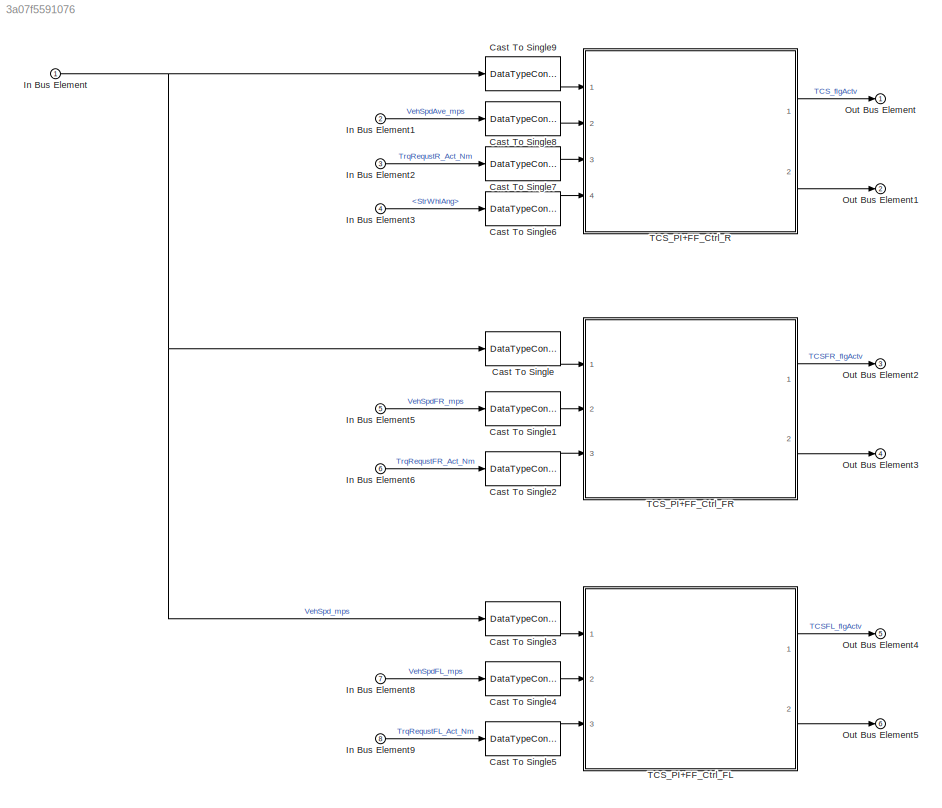
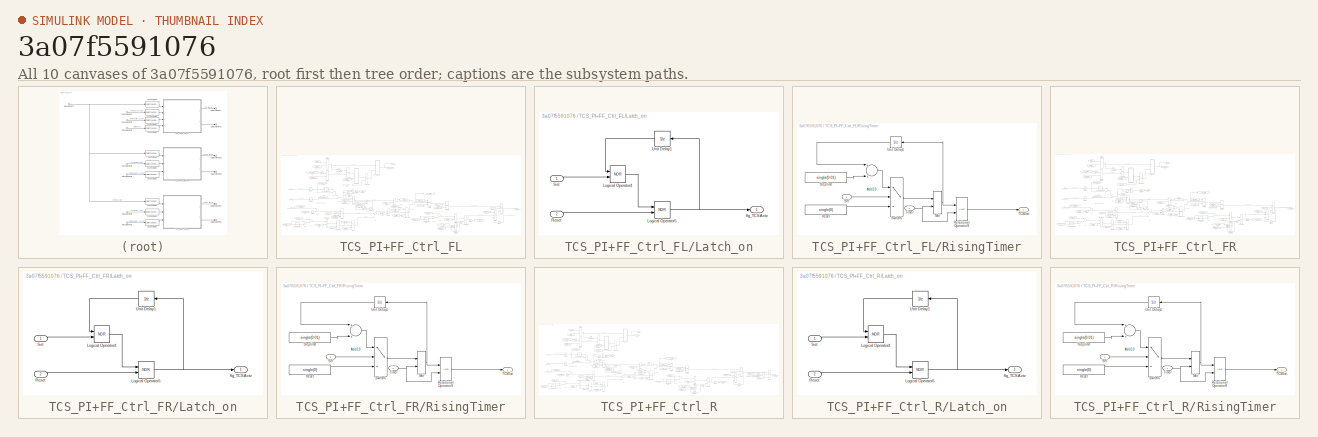
[diagram: thumbnail index - all 10 canvases of the model, root first then tree order]
MODEL slx_3a07f5591076
KIND model
CONFIG AbsTol = auto
CONFIG EnableMultiTasking = off
CONFIG FixedStep = auto
CONFIG MaxStep = auto
CONFIG MinStep = auto
CONFIG RelTol = 1e-3
CONFIG SampleTimeConstraint = Unconstrained
CONFIG Solver = VariableStepAuto
CONFIG SolverName = VariableStepAuto
CONFIG StartTime = 0.0
CONFIG StopTime = 10.0
BLOCK [DataTypeConversion] Cast To Single
  OutDataTypeStr = single
  RndMeth = Floor
  SaturateOnIntegerOverflow = off
BLOCK [DataTypeConversion] Cast To Single1
  OutDataTypeStr = single
  RndMeth = Floor
  SaturateOnIntegerOverflow = off
BLOCK [DataTypeConversion] Cast To Single2
  OutDataTypeStr = single
  RndMeth = Floor
  SaturateOnIntegerOverflow = off
BLOCK [DataTypeConversion] Cast To Single3
  OutDataTypeStr = single
  RndMeth = Floor
  SaturateOnIntegerOverflow = off
BLOCK [DataTypeConversion] Cast To Single4
  OutDataTypeStr = single
  RndMeth = Floor
  SaturateOnIntegerOverflow = off
BLOCK [DataTypeConversion] Cast To Single5
  OutDataTypeStr = single
  RndMeth = Floor
  SaturateOnIntegerOverflow = off
BLOCK [DataTypeConversion] Cast To Single6
  OutDataTypeStr = single
  RndMeth = Floor
  SaturateOnIntegerOverflow = off
BLOCK [DataTypeConversion] Cast To Single7
  OutDataTypeStr = single
  RndMeth = Floor
  SaturateOnIntegerOverflow = off
BLOCK [DataTypeConversion] Cast To Single8
  OutDataTypeStr = single
  RndMeth = Floor
  SaturateOnIntegerOverflow = off
BLOCK [DataTypeConversion] Cast To Single9
  OutDataTypeStr = single
  RndMeth = Floor
  SaturateOnIntegerOverflow = off
BLOCK [Inport] In Bus Element
  IconDisplay = Port number
BLOCK [Inport] In Bus Element1
  IconDisplay = Port number
  Port = 2
BLOCK [Inport] In Bus Element2
  IconDisplay = Port number
  Port = 3
BLOCK [Inport] In Bus Element3
  IconDisplay = Port number
  Port = 4
BLOCK [Inport] In Bus Element5
  IconDisplay = Port number
  Port = 5
BLOCK [Inport] In Bus Element6
  IconDisplay = Port number
  Port = 6
BLOCK [Inport] In Bus Element8
  IconDisplay = Port number
  Port = 7
BLOCK [Inport] In Bus Element9
  IconDisplay = Port number
  Port = 8
BLOCK [Outport] Out Bus Element
  IconDisplay = Port number
BLOCK [Outport] Out Bus Element1
  IconDisplay = Port number
  Port = 2
BLOCK [Outport] Out Bus Element2
  IconDisplay = Port number
  Port = 3
BLOCK [Outport] Out Bus Element3
  IconDisplay = Port number
  Port = 4
BLOCK [Outport] Out Bus Element4
  IconDisplay = Port number
  Port = 5
BLOCK [Outport] Out Bus Element5
  IconDisplay = Port number
  Port = 6
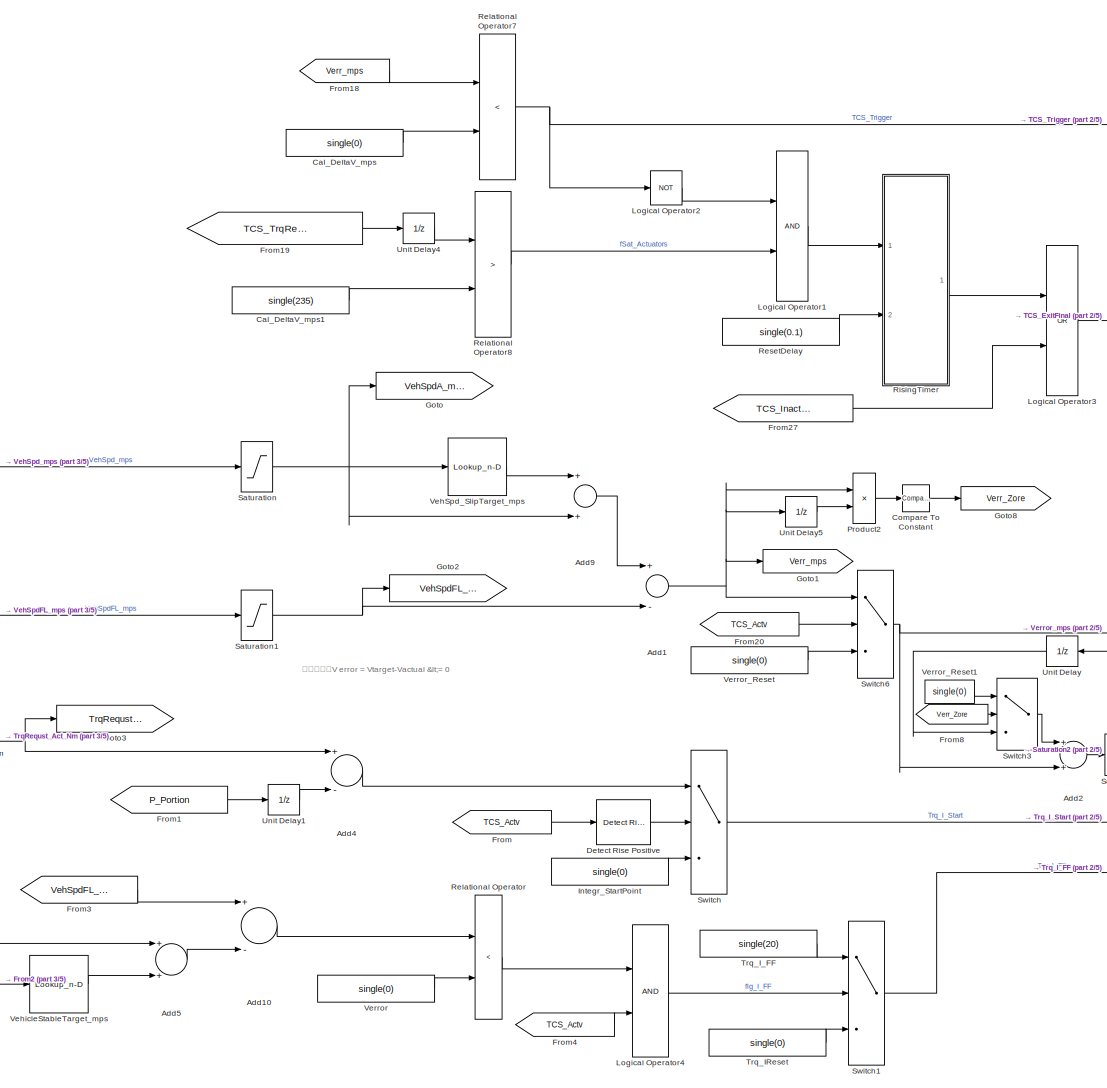
[diagram: TCS_PI+FF_Ctrl_FL - part 1/5, left side, full height]
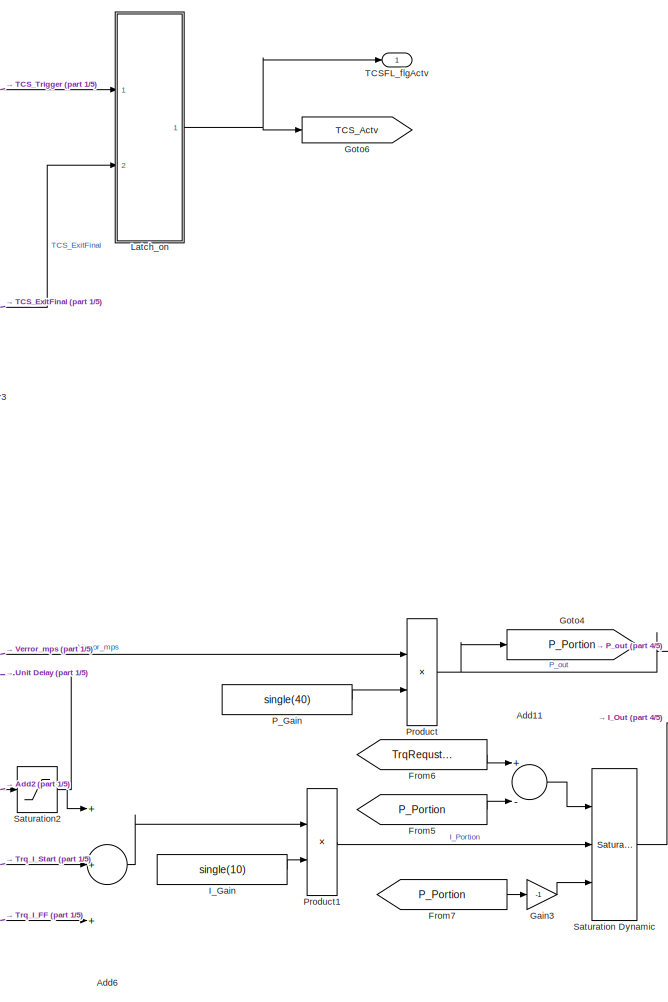
[diagram: TCS_PI+FF_Ctrl_FL - part 2/5, center side, full height]
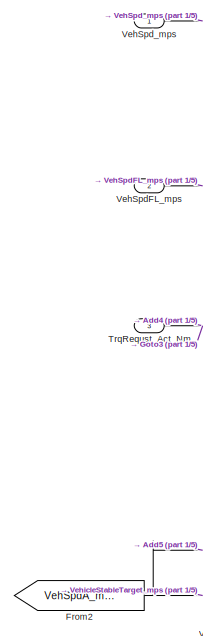
[diagram: TCS_PI+FF_Ctrl_FL - part 3/5, middle left region]
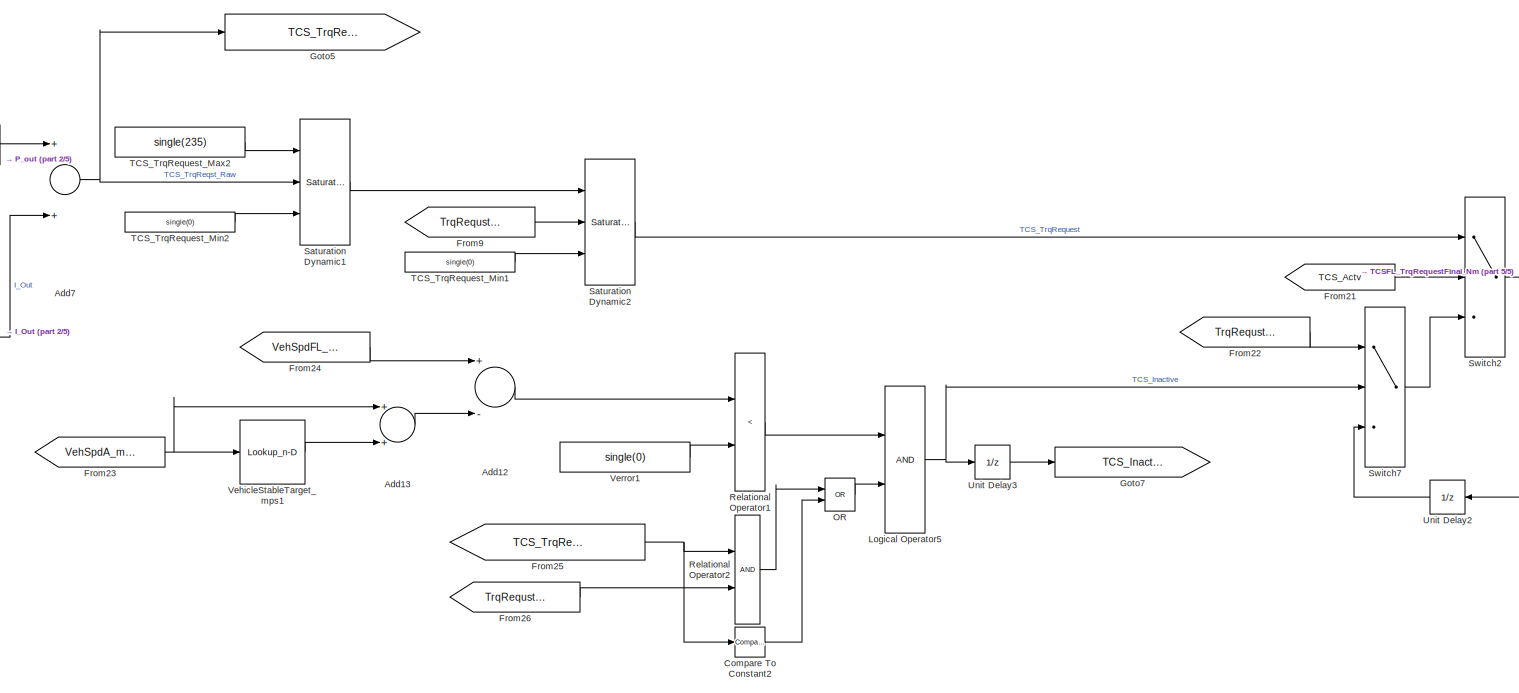
[diagram: TCS_PI+FF_Ctrl_FL - part 4/5, bottom right region]
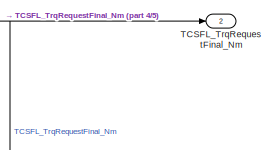
[diagram: TCS_PI+FF_Ctrl_FL - part 5/5, bottom right region]
BLOCK [SubSystem] TCS_PI+FF_Ctrl_FL
  Ports = [3, 2]
  RequestExecContextInheritance = off
BLOCK [Sum] TCS_PI+FF_Ctrl_FL/Add1
  InputSameDT = off
  Inputs = +-
  OutDataTypeStr = Inherit: Inherit via internal rule
  Ports = [2, 1]
  SaturateOnIntegerOverflow = off
BLOCK [Sum] TCS_PI+FF_Ctrl_FL/Add10
  InputSameDT = off
  Inputs = +-
  OutDataTypeStr = Inherit: Inherit via internal rule
  Ports = [2, 1]
  SaturateOnIntegerOverflow = off
BLOCK [Sum] TCS_PI+FF_Ctrl_FL/Add11
  InputSameDT = off
  Inputs = +-
  OutDataTypeStr = Inherit: Inherit via internal rule
  Ports = [2, 1]
  SaturateOnIntegerOverflow = off
BLOCK [Sum] TCS_PI+FF_Ctrl_FL/Add12
  InputSameDT = off
  Inputs = +-
  OutDataTypeStr = Inherit: Inherit via internal rule
  Ports = [2, 1]
  SaturateOnIntegerOverflow = off
BLOCK [Sum] TCS_PI+FF_Ctrl_FL/Add13
  InputSameDT = off
  OutDataTypeStr = Inherit: Inherit via internal rule
  Ports = [2, 1]
  SaturateOnIntegerOverflow = off
BLOCK [Sum] TCS_PI+FF_Ctrl_FL/Add2
  InputSameDT = off
  OutDataTypeStr = Inherit: Inherit via internal rule
  Ports = [2, 1]
  SaturateOnIntegerOverflow = off
BLOCK [Sum] TCS_PI+FF_Ctrl_FL/Add4
  InputSameDT = off
  Inputs = +-
  OutDataTypeStr = Inherit: Inherit via internal rule
  Ports = [2, 1]
  SaturateOnIntegerOverflow = off
BLOCK [Sum] TCS_PI+FF_Ctrl_FL/Add5
  InputSameDT = off
  OutDataTypeStr = Inherit: Inherit via internal rule
  Ports = [2, 1]
  SaturateOnIntegerOverflow = off
BLOCK [Sum] TCS_PI+FF_Ctrl_FL/Add6
  InputSameDT = off
  Inputs = +++
  OutDataTypeStr = Inherit: Inherit via internal rule
  Ports = [3, 1]
  SaturateOnIntegerOverflow = off
BLOCK [Sum] TCS_PI+FF_Ctrl_FL/Add7
  InputSameDT = off
  OutDataTypeStr = Inherit: Inherit via internal rule
  Ports = [2, 1]
  SaturateOnIntegerOverflow = off
BLOCK [Sum] TCS_PI+FF_Ctrl_FL/Add9
  InputSameDT = off
  OutDataTypeStr = Inherit: Inherit via internal rule
  Ports = [2, 1]
  SaturateOnIntegerOverflow = off
BLOCK [Constant] TCS_PI+FF_Ctrl_FL/Cal_DeltaV_mps
  Value = single(0)
BLOCK [Constant] TCS_PI+FF_Ctrl_FL/Cal_DeltaV_mps1
  Value = single(235)
BLOCK [Reference] TCS_PI+FF_Ctrl_FL/Compare To Constant  REF=simulink/Logic and Bit
Operations/Compare
To Constant
  Ports = [1, 1]
  SourceBlock = simulink/Logic and Bit\nOperations/Compare\nTo Constant
  SourceProductBaseCode = SL
  SourceProductName = Simulink
  SourceType = Compare To Constant
BLOCK [Reference] TCS_PI+FF_Ctrl_FL/Compare To Constant2  REF=simulink/Logic and Bit
Operations/Compare
To Constant
  Ports = [1, 1]
  SourceBlock = simulink/Logic and Bit\nOperations/Compare\nTo Constant
  SourceProductBaseCode = SL
  SourceProductName = Simulink
  SourceType = Compare To Constant
BLOCK [Reference] TCS_PI+FF_Ctrl_FL/Detect Rise Positive  REF=simulink/Logic and Bit
Operations/Detect Rise
Positive
  Ports = [1, 1]
  SourceBlock = simulink/Logic and Bit\nOperations/Detect Rise\nPositive
  SourceProductBaseCode = SL
  SourceProductName = Simulink
  SourceType = Detect Rise Positive
BLOCK [From] TCS_PI+FF_Ctrl_FL/From
  GotoTag = TCS_Actv
BLOCK [From] TCS_PI+FF_Ctrl_FL/From1
  GotoTag = P_Portion
BLOCK [From] TCS_PI+FF_Ctrl_FL/From18
  GotoTag = Verr_mps
BLOCK [From] TCS_PI+FF_Ctrl_FL/From19
  GotoTag = TCS_TrqReqstRaw_Nm
BLOCK [From] TCS_PI+FF_Ctrl_FL/From2
  GotoTag = VehSpdA_mps
BLOCK [From] TCS_PI+FF_Ctrl_FL/From20
  GotoTag = TCS_Actv
BLOCK [From] TCS_PI+FF_Ctrl_FL/From21
  GotoTag = TCS_Actv
BLOCK [From] TCS_PI+FF_Ctrl_FL/From22
  GotoTag = TrqRequst_Act_Nm
BLOCK [From] TCS_PI+FF_Ctrl_FL/From23
  GotoTag = VehSpdA_mps
BLOCK [From] TCS_PI+FF_Ctrl_FL/From24
  GotoTag = VehSpdFL_mps
BLOCK [From] TCS_PI+FF_Ctrl_FL/From25
  GotoTag = TCS_TrqReqstRaw_Nm
BLOCK [From] TCS_PI+FF_Ctrl_FL/From26
  GotoTag = TrqRequst_Act_Nm
BLOCK [From] TCS_PI+FF_Ctrl_FL/From27
  GotoTag = TCS_Inactive
BLOCK [From] TCS_PI+FF_Ctrl_FL/From3
  GotoTag = VehSpdFL_mps
BLOCK [From] TCS_PI+FF_Ctrl_FL/From4
  GotoTag = TCS_Actv
BLOCK [From] TCS_PI+FF_Ctrl_FL/From5
  GotoTag = P_Portion
BLOCK [From] TCS_PI+FF_Ctrl_FL/From6
  GotoTag = TrqRequst_Act_Nm
BLOCK [From] TCS_PI+FF_Ctrl_FL/From7
  GotoTag = P_Portion
BLOCK [From] TCS_PI+FF_Ctrl_FL/From8
  GotoTag = Verr_Zore
BLOCK [From] TCS_PI+FF_Ctrl_FL/From9
  GotoTag = TrqRequst_Act_Nm
BLOCK [Gain] TCS_PI+FF_Ctrl_FL/Gain3
  Gain = -1
  OutDataTypeStr = Inherit: Inherit via internal rule
  ParamDataTypeStr = Inherit: Inherit via internal rule
  SaturateOnIntegerOverflow = off
BLOCK [Goto] TCS_PI+FF_Ctrl_FL/Goto
  GotoTag = VehSpdA_mps
BLOCK [Goto] TCS_PI+FF_Ctrl_FL/Goto1
  GotoTag = Verr_mps
BLOCK [Goto] TCS_PI+FF_Ctrl_FL/Goto2
  GotoTag = VehSpdFL_mps
BLOCK [Goto] TCS_PI+FF_Ctrl_FL/Goto3
  GotoTag = TrqRequst_Act_Nm
BLOCK [Goto] TCS_PI+FF_Ctrl_FL/Goto4
  GotoTag = P_Portion
BLOCK [Goto] TCS_PI+FF_Ctrl_FL/Goto5
  GotoTag = TCS_TrqReqstRaw_Nm
BLOCK [Goto] TCS_PI+FF_Ctrl_FL/Goto6
  GotoTag = TCS_Actv
BLOCK [Goto] TCS_PI+FF_Ctrl_FL/Goto7
  GotoTag = TCS_Inactive
BLOCK [Goto] TCS_PI+FF_Ctrl_FL/Goto8
  GotoTag = Verr_Zore
BLOCK [Constant] TCS_PI+FF_Ctrl_FL/I_Gain
  Value = single(10)
BLOCK [Constant] TCS_PI+FF_Ctrl_FL/Integr_StartPoint
  Value = single(0)
BLOCK [SubSystem] TCS_PI+FF_Ctrl_FL/Latch_on
  Ports = [2, 1]
  RequestExecContextInheritance = off
BLOCK [Logic] TCS_PI+FF_Ctrl_FL/Latch_on/Logical Operator4
  AllPortsSameDT = off
  Operator = NOR
  OutDataTypeStr = boolean
  Ports = [2, 1]
BLOCK [Logic] TCS_PI+FF_Ctrl_FL/Latch_on/Logical Operator5
  AllPortsSameDT = off
  Operator = NOR
  OutDataTypeStr = boolean
  Ports = [2, 1]
BLOCK [Inport] TCS_PI+FF_Ctrl_FL/Latch_on/Reset
  IconDisplay = Port number
  Port = 2
BLOCK [Inport] TCS_PI+FF_Ctrl_FL/Latch_on/Set
  IconDisplay = Port number
BLOCK [UnitDelay] TCS_PI+FF_Ctrl_FL/Latch_on/Unit Delay1
  HasFrameUpgradeWarning = on
  SampleTime = -1
BLOCK [Outport] TCS_PI+FF_Ctrl_FL/Latch_on/flg_TCSActv
  IconDisplay = Port number
BLOCK [Logic] TCS_PI+FF_Ctrl_FL/Logical Operator1
  AllPortsSameDT = off
  OutDataTypeStr = boolean
  Ports = [2, 1]
BLOCK [Logic] TCS_PI+FF_Ctrl_FL/Logical Operator2
  AllPortsSameDT = off
  Operator = NOT
  OutDataTypeStr = boolean
  Ports = [1, 1]
BLOCK [Logic] TCS_PI+FF_Ctrl_FL/Logical Operator3
  AllPortsSameDT = off
  Operator = OR
  OutDataTypeStr = boolean
  Ports = [2, 1]
BLOCK [Logic] TCS_PI+FF_Ctrl_FL/Logical Operator4
  AllPortsSameDT = off
  OutDataTypeStr = boolean
  Ports = [2, 1]
BLOCK [Logic] TCS_PI+FF_Ctrl_FL/Logical Operator5
  AllPortsSameDT = off
  OutDataTypeStr = boolean
  Ports = [2, 1]
BLOCK [Logic] TCS_PI+FF_Ctrl_FL/OR
  AllPortsSameDT = off
  Operator = OR
  OutDataTypeStr = boolean
  Ports = [2, 1]
BLOCK [Constant] TCS_PI+FF_Ctrl_FL/P_Gain
  Value = single(40)
BLOCK [Product] TCS_PI+FF_Ctrl_FL/Product
  InputSameDT = off
  OutDataTypeStr = Inherit: Inherit via internal rule
  Ports = [2, 1]
  RndMeth = Floor
  SaturateOnIntegerOverflow = off
BLOCK [Product] TCS_PI+FF_Ctrl_FL/Product1
  InputSameDT = off
  OutDataTypeStr = Inherit: Inherit via internal rule
  Ports = [2, 1]
  RndMeth = Floor
  SaturateOnIntegerOverflow = off
BLOCK [Product] TCS_PI+FF_Ctrl_FL/Product2
  InputSameDT = off
  OutDataTypeStr = Inherit: Inherit via internal rule
  Ports = [2, 1]
  RndMeth = Floor
  SaturateOnIntegerOverflow = off
BLOCK [RelationalOperator] TCS_PI+FF_Ctrl_FL/Relational Operator
  InputSameDT = off
  Operator = <
  OutDataTypeStr = boolean
  Ports = [2, 1]
  RndMeth = Simplest
BLOCK [RelationalOperator] TCS_PI+FF_Ctrl_FL/Relational Operator1
  InputSameDT = off
  Operator = <
  OutDataTypeStr = boolean
  Ports = [2, 1]
  RndMeth = Simplest
BLOCK [RelationalOperator] TCS_PI+FF_Ctrl_FL/Relational Operator2
  InputSameDT = off
  OutDataTypeStr = boolean
  Ports = [2, 1]
  RndMeth = Simplest
BLOCK [RelationalOperator] TCS_PI+FF_Ctrl_FL/Relational Operator7
  InputSameDT = off
  Operator = <
  OutDataTypeStr = boolean
  Ports = [2, 1]
  RndMeth = Simplest
BLOCK [RelationalOperator] TCS_PI+FF_Ctrl_FL/Relational Operator8
  InputSameDT = off
  Operator = >
  OutDataTypeStr = boolean
  Ports = [2, 1]
  RndMeth = Simplest
BLOCK [Constant] TCS_PI+FF_Ctrl_FL/ResetDelay
  Value = single(0.1)
BLOCK [SubSystem] TCS_PI+FF_Ctrl_FL/RisingTimer
  Ports = [2, 1]
  RequestExecContextInheritance = off
BLOCK [Sum] TCS_PI+FF_Ctrl_FL/RisingTimer/Add10
  InputSameDT = off
  OutDataTypeStr = Inherit: Inherit via internal rule
  Ports = [2, 1]
  SaturateOnIntegerOverflow = off
BLOCK [MinMax] TCS_PI+FF_Ctrl_FL/RisingTimer/Min
  InputSameDT = off
  Inputs = 2
  Ports = [2, 1]
  SaturateOnIntegerOverflow = off
BLOCK [RelationalOperator] TCS_PI+FF_Ctrl_FL/RisingTimer/Relational Operator9
  InputSameDT = off
  OutDataTypeStr = boolean
  Ports = [2, 1]
  RndMeth = Simplest
BLOCK [Constant] TCS_PI+FF_Ctrl_FL/RisingTimer/Reset
  Value = single(0)
BLOCK [Inport] TCS_PI+FF_Ctrl_FL/RisingTimer/Set
  IconDisplay = Port number
BLOCK [Constant] TCS_PI+FF_Ctrl_FL/RisingTimer/Steptime
  Value = single(0.01)
BLOCK [Switch] TCS_PI+FF_Ctrl_FL/RisingTimer/Switch6
  Criteria = u2 ~= 0
  InputSameDT = off
  SaturateOnIntegerOverflow = off
BLOCK [Outport] TCS_PI+FF_Ctrl_FL/RisingTimer/TCSExit
  IconDisplay = Port number
BLOCK [Inport] TCS_PI+FF_Ctrl_FL/RisingTimer/Timer
  IconDisplay = Port number
  Port = 2
BLOCK [UnitDelay] TCS_PI+FF_Ctrl_FL/RisingTimer/Unit Delay1
  HasFrameUpgradeWarning = on
  SampleTime = -1
BLOCK [Saturate] TCS_PI+FF_Ctrl_FL/Saturation
  InputPortMap = u0
  LowerLimit = 0
  Ports = [1, 1]
  UpperLimit = 40
BLOCK [Reference] TCS_PI+FF_Ctrl_FL/Saturation Dynamic  REF=simulink/Discontinuities/Saturation
Dynamic
  Ports = [3, 1]
  SourceBlock = simulink/Discontinuities/Saturation\nDynamic
  SourceProductBaseCode = SL
  SourceProductName = Simulink
  SourceType = Saturation Dynamic
BLOCK [Reference] TCS_PI+FF_Ctrl_FL/Saturation Dynamic1  REF=simulink/Discontinuities/Saturation
Dynamic
  Ports = [3, 1]
  SourceBlock = simulink/Discontinuities/Saturation\nDynamic
  SourceProductBaseCode = SL
  SourceProductName = Simulink
  SourceType = Saturation Dynamic
BLOCK [Reference] TCS_PI+FF_Ctrl_FL/Saturation Dynamic2  REF=simulink/Discontinuities/Saturation
Dynamic
  Ports = [3, 1]
  SourceBlock = simulink/Discontinuities/Saturation\nDynamic
  SourceProductBaseCode = SL
  SourceProductName = Simulink
  SourceType = Saturation Dynamic
BLOCK [Saturate] TCS_PI+FF_Ctrl_FL/Saturation1
  InputPortMap = u0
  LowerLimit = 0
  Ports = [1, 1]
  UpperLimit = 50
BLOCK [Saturate] TCS_PI+FF_Ctrl_FL/Saturation2
  InputPortMap = u0
  LowerLimit = -100
  Ports = [1, 1]
  UpperLimit = 400
BLOCK [Switch] TCS_PI+FF_Ctrl_FL/Switch
  Criteria = u2 ~= 0
  InputSameDT = off
  SaturateOnIntegerOverflow = off
BLOCK [Switch] TCS_PI+FF_Ctrl_FL/Switch1
  Criteria = u2 ~= 0
  InputSameDT = off
  SaturateOnIntegerOverflow = off
BLOCK [Switch] TCS_PI+FF_Ctrl_FL/Switch2
  Criteria = u2 ~= 0
  InputSameDT = off
  SaturateOnIntegerOverflow = off
BLOCK [Switch] TCS_PI+FF_Ctrl_FL/Switch3
  Criteria = u2 ~= 0
  InputSameDT = off
  SaturateOnIntegerOverflow = off
BLOCK [Switch] TCS_PI+FF_Ctrl_FL/Switch6
  Criteria = u2 ~= 0
  InputSameDT = off
  SaturateOnIntegerOverflow = off
BLOCK [Switch] TCS_PI+FF_Ctrl_FL/Switch7
  Criteria = u2 ~= 0
  InputSameDT = off
  SaturateOnIntegerOverflow = off
BLOCK [Outport] TCS_PI+FF_Ctrl_FL/TCSFL_TrqRequestFinal_Nm
  IconDisplay = Port number
  Port = 2
BLOCK [Outport] TCS_PI+FF_Ctrl_FL/TCSFL_flgActv
  IconDisplay = Port number
BLOCK [Constant] TCS_PI+FF_Ctrl_FL/TCS_TrqRequest_Max2
  Value = single(235)
BLOCK [Constant] TCS_PI+FF_Ctrl_FL/TCS_TrqRequest_Min1
  Value = single(0)
BLOCK [Constant] TCS_PI+FF_Ctrl_FL/TCS_TrqRequest_Min2
  Value = single(0)
BLOCK [Inport] TCS_PI+FF_Ctrl_FL/TrqRequst_Act_Nm
  IconDisplay = Port number
  Port = 3
BLOCK [Constant] TCS_PI+FF_Ctrl_FL/Trq_IReset
  Value = single(0)
BLOCK [Constant] TCS_PI+FF_Ctrl_FL/Trq_I_FF
  Value = single(20)
BLOCK [UnitDelay] TCS_PI+FF_Ctrl_FL/Unit Delay
  HasFrameUpgradeWarning = on
  SampleTime = -1
BLOCK [UnitDelay] TCS_PI+FF_Ctrl_FL/Unit Delay1
  HasFrameUpgradeWarning = on
  SampleTime = -1
BLOCK [UnitDelay] TCS_PI+FF_Ctrl_FL/Unit Delay2
  HasFrameUpgradeWarning = on
  SampleTime = -1
BLOCK [UnitDelay] TCS_PI+FF_Ctrl_FL/Unit Delay3
  HasFrameUpgradeWarning = on
  SampleTime = -1
BLOCK [UnitDelay] TCS_PI+FF_Ctrl_FL/Unit Delay4
  HasFrameUpgradeWarning = on
  SampleTime = -1
BLOCK [UnitDelay] TCS_PI+FF_Ctrl_FL/Unit Delay5
  HasFrameUpgradeWarning = on
  SampleTime = -1
BLOCK [Inport] TCS_PI+FF_Ctrl_FL/VehSpdFL_mps
  IconDisplay = Port number
  Port = 2
BLOCK [Lookup_n-D] TCS_PI+FF_Ctrl_FL/VehSpd_SlipTarget_mps
  BreakpointsForDimension1 = [0,3,25,30]
  ExtrapMethod = Clip
  InternalRulePriority = Speed
  NumberOfTableDimensions = 1
  Ports = [1, 1]
  RndMeth = Simplest
  Table = [0.3,0.3,2.5,2.5]
BLOCK [Inport] TCS_PI+FF_Ctrl_FL/VehSpd_mps
  IconDisplay = Port number
BLOCK [Lookup_n-D] TCS_PI+FF_Ctrl_FL/VehicleStableTarget_mps
  BreakpointsForDimension1 = [0,3,25,30]
  ExtrapMethod = Clip
  InternalRulePriority = Speed
  NumberOfTableDimensions = 1
  Ports = [1, 1]
  RndMeth = Simplest
  Table = [0.4,0.4,1.2,1.2]
BLOCK [Lookup_n-D] TCS_PI+FF_Ctrl_FL/VehicleStableTarget_mps1
  BreakpointsForDimension1 = [0,3,25,30]
  ExtrapMethod = Clip
  InternalRulePriority = Speed
  NumberOfTableDimensions = 1
  Ports = [1, 1]
  RndMeth = Simplest
  Table = [0.4,0.4,1.2,1.2]
BLOCK [Constant] TCS_PI+FF_Ctrl_FL/Verror
  Value = single(0)
BLOCK [Constant] TCS_PI+FF_Ctrl_FL/Verror1
  Value = single(0)
BLOCK [Constant] TCS_PI+FF_Ctrl_FL/Verror_Reset
  Value = single(0)
BLOCK [Constant] TCS_PI+FF_Ctrl_FL/Verror_Reset1
  Value = single(0)
BLOCK [SubSystem] TCS_PI+FF_Ctrl_FR
  Ports = [3, 2]
  RequestExecContextInheritance = off
BLOCK [Sum] TCS_PI+FF_Ctrl_FR/Add1
  InputSameDT = off
  Inputs = +-
  OutDataTypeStr = Inherit: Inherit via internal rule
  Ports = [2, 1]
  SaturateOnIntegerOverflow = off
BLOCK [Sum] TCS_PI+FF_Ctrl_FR/Add10
  InputSameDT = off
  Inputs = +-
  OutDataTypeStr = Inherit: Inherit via internal rule
  Ports = [2, 1]
  SaturateOnIntegerOverflow = off
BLOCK [Sum] TCS_PI+FF_Ctrl_FR/Add11
  InputSameDT = off
  Inputs = +-
  OutDataTypeStr = Inherit: Inherit via internal rule
  Ports = [2, 1]
  SaturateOnIntegerOverflow = off
BLOCK [Sum] TCS_PI+FF_Ctrl_FR/Add12
  InputSameDT = off
  Inputs = +-
  OutDataTypeStr = Inherit: Inherit via internal rule
  Ports = [2, 1]
  SaturateOnIntegerOverflow = off
BLOCK [Sum] TCS_PI+FF_Ctrl_FR/Add13
  InputSameDT = off
  OutDataTypeStr = Inherit: Inherit via internal rule
  Ports = [2, 1]
  SaturateOnIntegerOverflow = off
BLOCK [Sum] TCS_PI+FF_Ctrl_FR/Add2
  InputSameDT = off
  OutDataTypeStr = Inherit: Inherit via internal rule
  Ports = [2, 1]
  SaturateOnIntegerOverflow = off
BLOCK [Sum] TCS_PI+FF_Ctrl_FR/Add4
  InputSameDT = off
  Inputs = +-
  OutDataTypeStr = Inherit: Inherit via internal rule
  Ports = [2, 1]
  SaturateOnIntegerOverflow = off
BLOCK [Sum] TCS_PI+FF_Ctrl_FR/Add5
  InputSameDT = off
  OutDataTypeStr = Inherit: Inherit via internal rule
  Ports = [2, 1]
  SaturateOnIntegerOverflow = off
BLOCK [Sum] TCS_PI+FF_Ctrl_FR/Add6
  InputSameDT = off
  Inputs = +++
  OutDataTypeStr = Inherit: Inherit via internal rule
  Ports = [3, 1]
  SaturateOnIntegerOverflow = off
BLOCK [Sum] TCS_PI+FF_Ctrl_FR/Add7
  InputSameDT = off
  OutDataTypeStr = Inherit: Inherit via internal rule
  Ports = [2, 1]
  SaturateOnIntegerOverflow = off
BLOCK [Sum] TCS_PI+FF_Ctrl_FR/Add9
  InputSameDT = off
  OutDataTypeStr = Inherit: Inherit via internal rule
  Ports = [2, 1]
  SaturateOnIntegerOverflow = off
BLOCK [Constant] TCS_PI+FF_Ctrl_FR/Cal_DeltaV_mps
  Value = single(0)
BLOCK [Constant] TCS_PI+FF_Ctrl_FR/Cal_DeltaV_mps1
  Value = single(235)
BLOCK [Reference] TCS_PI+FF_Ctrl_FR/Compare To Constant  REF=simulink/Logic and Bit
Operations/Compare
To Constant
  Ports = [1, 1]
  SourceBlock = simulink/Logic and Bit\nOperations/Compare\nTo Constant
  SourceProductBaseCode = SL
  SourceProductName = Simulink
  SourceType = Compare To Constant
BLOCK [Reference] TCS_PI+FF_Ctrl_FR/Compare To Constant2  REF=simulink/Logic and Bit
Operations/Compare
To Constant
  Ports = [1, 1]
  SourceBlock = simulink/Logic and Bit\nOperations/Compare\nTo Constant
  SourceProductBaseCode = SL
  SourceProductName = Simulink
  SourceType = Compare To Constant
BLOCK [Reference] TCS_PI+FF_Ctrl_FR/Detect Rise Positive  REF=simulink/Logic and Bit
Operations/Detect Rise
Positive
  Ports = [1, 1]
  SourceBlock = simulink/Logic and Bit\nOperations/Detect Rise\nPositive
  SourceProductBaseCode = SL
  SourceProductName = Simulink
  SourceType = Detect Rise Positive
BLOCK [From] TCS_PI+FF_Ctrl_FR/From
  GotoTag = TCS_Actv
BLOCK [From] TCS_PI+FF_Ctrl_FR/From1
  GotoTag = P_Portion
BLOCK [From] TCS_PI+FF_Ctrl_FR/From18
  GotoTag = Verr_mps
BLOCK [From] TCS_PI+FF_Ctrl_FR/From19
  GotoTag = TCS_TrqReqstRaw_Nm
BLOCK [From] TCS_PI+FF_Ctrl_FR/From2
  GotoTag = VehSpd_Ref_mps
BLOCK [From] TCS_PI+FF_Ctrl_FR/From20
  GotoTag = TCS_Actv
BLOCK [From] TCS_PI+FF_Ctrl_FR/From21
  GotoTag = TCS_Actv
BLOCK [From] TCS_PI+FF_Ctrl_FR/From22
  GotoTag = TrqRequst_Act_Nm
BLOCK [From] TCS_PI+FF_Ctrl_FR/From23
  GotoTag = VehSpd_Ref_mps
BLOCK [From] TCS_PI+FF_Ctrl_FR/From24
  GotoTag = VehSpd_RA_mps
BLOCK [From] TCS_PI+FF_Ctrl_FR/From25
  GotoTag = TCS_TrqReqstRaw_Nm
BLOCK [From] TCS_PI+FF_Ctrl_FR/From26
  GotoTag = TrqRequst_Act_Nm
BLOCK [From] TCS_PI+FF_Ctrl_FR/From27
  GotoTag = TCS_Inactive
BLOCK [From] TCS_PI+FF_Ctrl_FR/From3
  GotoTag = VehSpd_RA_mps
BLOCK [From] TCS_PI+FF_Ctrl_FR/From4
  GotoTag = TCS_Actv
BLOCK [From] TCS_PI+FF_Ctrl_FR/From5
  GotoTag = P_Portion
BLOCK [From] TCS_PI+FF_Ctrl_FR/From6
  GotoTag = TrqRequst_Act_Nm
BLOCK [From] TCS_PI+FF_Ctrl_FR/From7
  GotoTag = P_Portion
BLOCK [From] TCS_PI+FF_Ctrl_FR/From8
  GotoTag = Verr_Zore
BLOCK [From] TCS_PI+FF_Ctrl_FR/From9
  GotoTag = TrqRequst_Act_Nm
BLOCK [Gain] TCS_PI+FF_Ctrl_FR/Gain3
  Gain = -1
  OutDataTypeStr = Inherit: Inherit via internal rule
  ParamDataTypeStr = Inherit: Inherit via internal rule
  SaturateOnIntegerOverflow = off
BLOCK [Goto] TCS_PI+FF_Ctrl_FR/Goto
  GotoTag = VehSpd_Ref_mps
BLOCK [Goto] TCS_PI+FF_Ctrl_FR/Goto1
  GotoTag = Verr_mps
BLOCK [Goto] TCS_PI+FF_Ctrl_FR/Goto2
  GotoTag = VehSpd_RA_mps
BLOCK [Goto] TCS_PI+FF_Ctrl_FR/Goto3
  GotoTag = TrqRequst_Act_Nm
BLOCK [Goto] TCS_PI+FF_Ctrl_FR/Goto4
  GotoTag = P_Portion
BLOCK [Goto] TCS_PI+FF_Ctrl_FR/Goto5
  GotoTag = TCS_TrqReqstRaw_Nm
BLOCK [Goto] TCS_PI+FF_Ctrl_FR/Goto6
  GotoTag = TCS_Actv
BLOCK [Goto] TCS_PI+FF_Ctrl_FR/Goto7
  GotoTag = TCS_Inactive
BLOCK [Goto] TCS_PI+FF_Ctrl_FR/Goto8
  GotoTag = Verr_Zore
BLOCK [Constant] TCS_PI+FF_Ctrl_FR/I_Gain
  Value = single(10)
BLOCK [Constant] TCS_PI+FF_Ctrl_FR/Integr_StartPoint
  Value = single(0)
BLOCK [SubSystem] TCS_PI+FF_Ctrl_FR/Latch_on
  Ports = [2, 1]
  RequestExecContextInheritance = off
BLOCK [Logic] TCS_PI+FF_Ctrl_FR/Latch_on/Logical Operator4
  AllPortsSameDT = off
  Operator = NOR
  OutDataTypeStr = boolean
  Ports = [2, 1]
BLOCK [Logic] TCS_PI+FF_Ctrl_FR/Latch_on/Logical Operator5
  AllPortsSameDT = off
  Operator = NOR
  OutDataTypeStr = boolean
  Ports = [2, 1]
BLOCK [Inport] TCS_PI+FF_Ctrl_FR/Latch_on/Reset
  IconDisplay = Port number
  Port = 2
BLOCK [Inport] TCS_PI+FF_Ctrl_FR/Latch_on/Set
  IconDisplay = Port number
BLOCK [UnitDelay] TCS_PI+FF_Ctrl_FR/Latch_on/Unit Delay1
  HasFrameUpgradeWarning = on
  SampleTime = -1
BLOCK [Outport] TCS_PI+FF_Ctrl_FR/Latch_on/flg_TCSActv
  IconDisplay = Port number
BLOCK [Logic] TCS_PI+FF_Ctrl_FR/Logical Operator1
  AllPortsSameDT = off
  OutDataTypeStr = boolean
  Ports = [2, 1]
BLOCK [Logic] TCS_PI+FF_Ctrl_FR/Logical Operator2
  AllPortsSameDT = off
  Operator = NOT
  OutDataTypeStr = boolean
  Ports = [1, 1]
BLOCK [Logic] TCS_PI+FF_Ctrl_FR/Logical Operator3
  AllPortsSameDT = off
  Operator = OR
  OutDataTypeStr = boolean
  Ports = [2, 1]
BLOCK [Logic] TCS_PI+FF_Ctrl_FR/Logical Operator4
  AllPortsSameDT = off
  OutDataTypeStr = boolean
  Ports = [2, 1]
BLOCK [Logic] TCS_PI+FF_Ctrl_FR/Logical Operator5
  AllPortsSameDT = off
  OutDataTypeStr = boolean
  Ports = [2, 1]
BLOCK [Logic] TCS_PI+FF_Ctrl_FR/OR
  AllPortsSameDT = off
  Operator = OR
  OutDataTypeStr = boolean
  Ports = [2, 1]
BLOCK [Constant] TCS_PI+FF_Ctrl_FR/P_Gain
  Value = single(40)
BLOCK [Product] TCS_PI+FF_Ctrl_FR/Product
  InputSameDT = off
  OutDataTypeStr = Inherit: Inherit via internal rule
  Ports = [2, 1]
  RndMeth = Floor
  SaturateOnIntegerOverflow = off
BLOCK [Product] TCS_PI+FF_Ctrl_FR/Product1
  InputSameDT = off
  OutDataTypeStr = Inherit: Inherit via internal rule
  Ports = [2, 1]
  RndMeth = Floor
  SaturateOnIntegerOverflow = off
BLOCK [Product] TCS_PI+FF_Ctrl_FR/Product2
  InputSameDT = off
  OutDataTypeStr = Inherit: Inherit via internal rule
  Ports = [2, 1]
  RndMeth = Floor
  SaturateOnIntegerOverflow = off
BLOCK [RelationalOperator] TCS_PI+FF_Ctrl_FR/Relational Operator
  InputSameDT = off
  Operator = <
  OutDataTypeStr = boolean
  Ports = [2, 1]
  RndMeth = Simplest
BLOCK [RelationalOperator] TCS_PI+FF_Ctrl_FR/Relational Operator1
  InputSameDT = off
  Operator = <
  OutDataTypeStr = boolean
  Ports = [2, 1]
  RndMeth = Simplest
BLOCK [RelationalOperator] TCS_PI+FF_Ctrl_FR/Relational Operator2
  InputSameDT = off
  OutDataTypeStr = boolean
  Ports = [2, 1]
  RndMeth = Simplest
BLOCK [RelationalOperator] TCS_PI+FF_Ctrl_FR/Relational Operator7
  InputSameDT = off
  Operator = <
  OutDataTypeStr = boolean
  Ports = [2, 1]
  RndMeth = Simplest
BLOCK [RelationalOperator] TCS_PI+FF_Ctrl_FR/Relational Operator8
  InputSameDT = off
  Operator = >
  OutDataTypeStr = boolean
  Ports = [2, 1]
  RndMeth = Simplest
BLOCK [Constant] TCS_PI+FF_Ctrl_FR/ResetDelay
  Value = single(0.1)
BLOCK [SubSystem] TCS_PI+FF_Ctrl_FR/RisingTimer
  Ports = [2, 1]
  RequestExecContextInheritance = off
BLOCK [Sum] TCS_PI+FF_Ctrl_FR/RisingTimer/Add10
  InputSameDT = off
  OutDataTypeStr = Inherit: Inherit via internal rule
  Ports = [2, 1]
  SaturateOnIntegerOverflow = off
BLOCK [MinMax] TCS_PI+FF_Ctrl_FR/RisingTimer/Min
  InputSameDT = off
  Inputs = 2
  Ports = [2, 1]
  SaturateOnIntegerOverflow = off
BLOCK [RelationalOperator] TCS_PI+FF_Ctrl_FR/RisingTimer/Relational Operator9
  InputSameDT = off
  OutDataTypeStr = boolean
  Ports = [2, 1]
  RndMeth = Simplest
BLOCK [Constant] TCS_PI+FF_Ctrl_FR/RisingTimer/Reset
  Value = single(0)
BLOCK [Inport] TCS_PI+FF_Ctrl_FR/RisingTimer/Set
  IconDisplay = Port number
BLOCK [Constant] TCS_PI+FF_Ctrl_FR/RisingTimer/Steptime
  Value = single(0.01)
BLOCK [Switch] TCS_PI+FF_Ctrl_FR/RisingTimer/Switch6
  Criteria = u2 ~= 0
  InputSameDT = off
  SaturateOnIntegerOverflow = off
BLOCK [Outport] TCS_PI+FF_Ctrl_FR/RisingTimer/TCSExit
  IconDisplay = Port number
BLOCK [Inport] TCS_PI+FF_Ctrl_FR/RisingTimer/Timer
  IconDisplay = Port number
  Port = 2
BLOCK [UnitDelay] TCS_PI+FF_Ctrl_FR/RisingTimer/Unit Delay1
  HasFrameUpgradeWarning = on
  SampleTime = -1
BLOCK [Saturate] TCS_PI+FF_Ctrl_FR/Saturation
  InputPortMap = u0
  LowerLimit = 0
  Ports = [1, 1]
  UpperLimit = 40
BLOCK [Reference] TCS_PI+FF_Ctrl_FR/Saturation Dynamic  REF=simulink/Discontinuities/Saturation
Dynamic
  Ports = [3, 1]
  SourceBlock = simulink/Discontinuities/Saturation\nDynamic
  SourceProductBaseCode = SL
  SourceProductName = Simulink
  SourceType = Saturation Dynamic
BLOCK [Reference] TCS_PI+FF_Ctrl_FR/Saturation Dynamic1  REF=simulink/Discontinuities/Saturation
Dynamic
  Ports = [3, 1]
  SourceBlock = simulink/Discontinuities/Saturation\nDynamic
  SourceProductBaseCode = SL
  SourceProductName = Simulink
  SourceType = Saturation Dynamic
BLOCK [Reference] TCS_PI+FF_Ctrl_FR/Saturation Dynamic2  REF=simulink/Discontinuities/Saturation
Dynamic
  Ports = [3, 1]
  SourceBlock = simulink/Discontinuities/Saturation\nDynamic
  SourceProductBaseCode = SL
  SourceProductName = Simulink
  SourceType = Saturation Dynamic
BLOCK [Saturate] TCS_PI+FF_Ctrl_FR/Saturation1
  InputPortMap = u0
  LowerLimit = 0
  Ports = [1, 1]
  UpperLimit = 50
BLOCK [Saturate] TCS_PI+FF_Ctrl_FR/Saturation2
  InputPortMap = u0
  LowerLimit = -100
  Ports = [1, 1]
  UpperLimit = 400
BLOCK [Switch] TCS_PI+FF_Ctrl_FR/Switch
  Criteria = u2 ~= 0
  InputSameDT = off
  SaturateOnIntegerOverflow = off
BLOCK [Switch] TCS_PI+FF_Ctrl_FR/Switch1
  Criteria = u2 ~= 0
  InputSameDT = off
  SaturateOnIntegerOverflow = off
BLOCK [Switch] TCS_PI+FF_Ctrl_FR/Switch2
  Criteria = u2 ~= 0
  InputSameDT = off
  SaturateOnIntegerOverflow = off
BLOCK [Switch] TCS_PI+FF_Ctrl_FR/Switch3
  Criteria = u2 ~= 0
  InputSameDT = off
  SaturateOnIntegerOverflow = off
BLOCK [Switch] TCS_PI+FF_Ctrl_FR/Switch6
  Criteria = u2 ~= 0
  InputSameDT = off
  SaturateOnIntegerOverflow = off
BLOCK [Switch] TCS_PI+FF_Ctrl_FR/Switch7
  Criteria = u2 ~= 0
  InputSameDT = off
  SaturateOnIntegerOverflow = off
BLOCK [Outport] TCS_PI+FF_Ctrl_FR/TCSFR_TrqRequestFinal_Nm
  IconDisplay = Port number
  Port = 2
BLOCK [Outport] TCS_PI+FF_Ctrl_FR/TCSFR_flgActv
  IconDisplay = Port number
BLOCK [Constant] TCS_PI+FF_Ctrl_FR/TCS_TrqRequest_Max2
  Value = single(235)
BLOCK [Constant] TCS_PI+FF_Ctrl_FR/TCS_TrqRequest_Min1
  Value = single(0)
BLOCK [Constant] TCS_PI+FF_Ctrl_FR/TCS_TrqRequest_Min2
  Value = single(0)
BLOCK [Inport] TCS_PI+FF_Ctrl_FR/TrqRequst_Act_Nm
  IconDisplay = Port number
  Port = 3
BLOCK [Constant] TCS_PI+FF_Ctrl_FR/Trq_IReset
  Value = single(0)
BLOCK [Constant] TCS_PI+FF_Ctrl_FR/Trq_I_FF
  Value = single(20)
BLOCK [UnitDelay] TCS_PI+FF_Ctrl_FR/Unit Delay
  HasFrameUpgradeWarning = on
  SampleTime = -1
BLOCK [UnitDelay] TCS_PI+FF_Ctrl_FR/Unit Delay1
  HasFrameUpgradeWarning = on
  SampleTime = -1
BLOCK [UnitDelay] TCS_PI+FF_Ctrl_FR/Unit Delay2
  HasFrameUpgradeWarning = on
  SampleTime = -1
BLOCK [UnitDelay] TCS_PI+FF_Ctrl_FR/Unit Delay3
  HasFrameUpgradeWarning = on
  SampleTime = -1
BLOCK [UnitDelay] TCS_PI+FF_Ctrl_FR/Unit Delay4
  HasFrameUpgradeWarning = on
  SampleTime = -1
BLOCK [UnitDelay] TCS_PI+FF_Ctrl_FR/Unit Delay5
  HasFrameUpgradeWarning = on
  SampleTime = -1
BLOCK [Inport] TCS_PI+FF_Ctrl_FR/VehSpdFR_mps
  IconDisplay = Port number
  Port = 2
BLOCK [Lookup_n-D] TCS_PI+FF_Ctrl_FR/VehSpd_SlipTarget_mps
  BreakpointsForDimension1 = [0,3,25,30]
  ExtrapMethod = Clip
  InternalRulePriority = Speed
  NumberOfTableDimensions = 1
  Ports = [1, 1]
  RndMeth = Simplest
  Table = [0.3,0.3,2.5,2.5]
BLOCK [Inport] TCS_PI+FF_Ctrl_FR/VehSpd_mps
  IconDisplay = Port number
BLOCK [Lookup_n-D] TCS_PI+FF_Ctrl_FR/VehicleStableTarget_mps
  BreakpointsForDimension1 = [0,3,25,30]
  ExtrapMethod = Clip
  InternalRulePriority = Speed
  NumberOfTableDimensions = 1
  Ports = [1, 1]
  RndMeth = Simplest
  Table = [0.4,0.4,1.2,1.2]
BLOCK [Lookup_n-D] TCS_PI+FF_Ctrl_FR/VehicleStableTarget_mps1
  BreakpointsForDimension1 = [0,3,25,30]
  ExtrapMethod = Clip
  InternalRulePriority = Speed
  NumberOfTableDimensions = 1
  Ports = [1, 1]
  RndMeth = Simplest
  Table = [0.4,0.4,1.2,1.2]
BLOCK [Constant] TCS_PI+FF_Ctrl_FR/Verror
  Value = single(0)
BLOCK [Constant] TCS_PI+FF_Ctrl_FR/Verror1
  Value = single(0)
BLOCK [Constant] TCS_PI+FF_Ctrl_FR/Verror_Reset
  Value = single(0)
BLOCK [Constant] TCS_PI+FF_Ctrl_FR/Verror_Reset1
  Value = single(0)
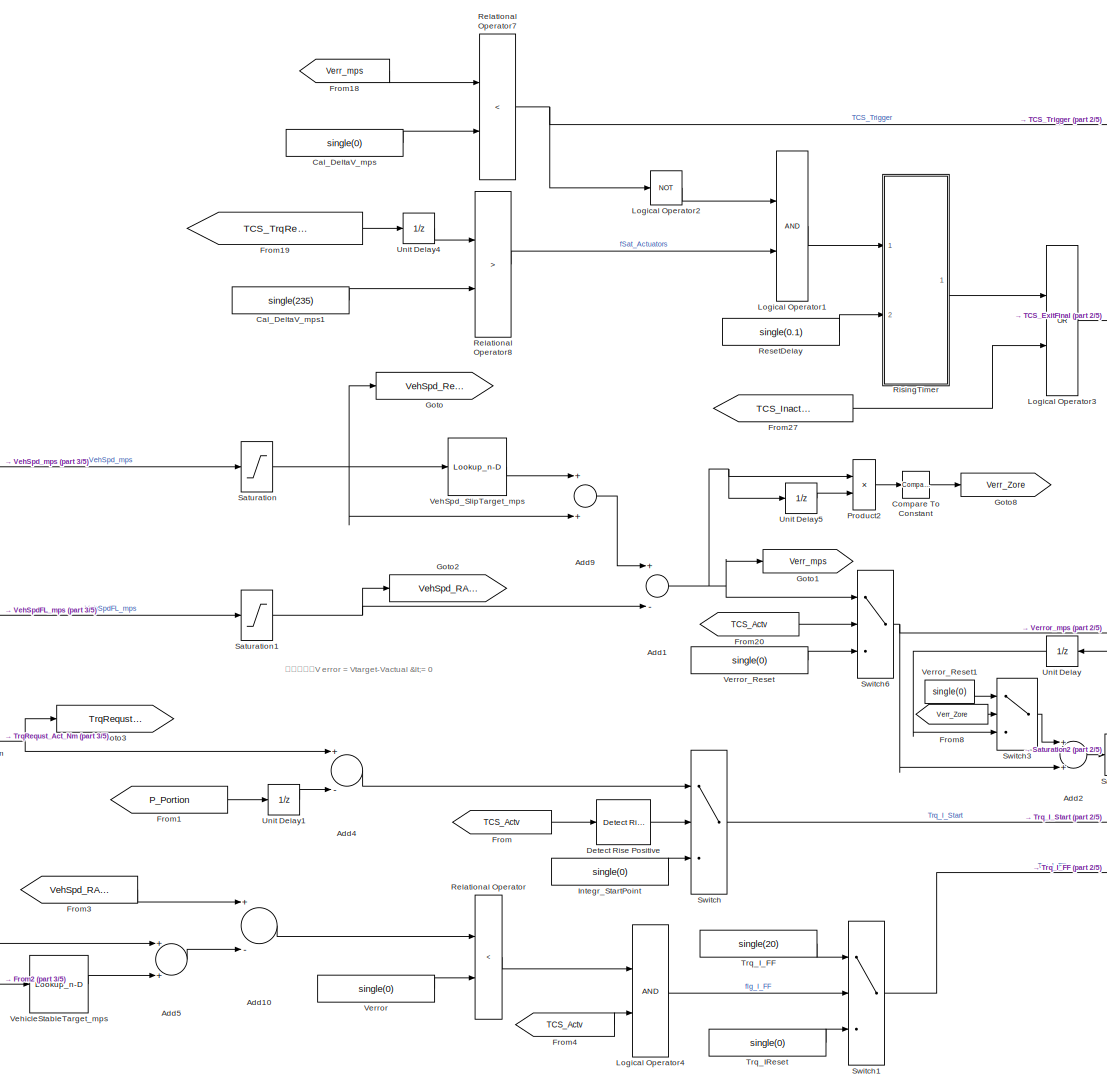
[diagram: TCS_PI+FF_Ctrl_R - part 1/5, left side, full height]
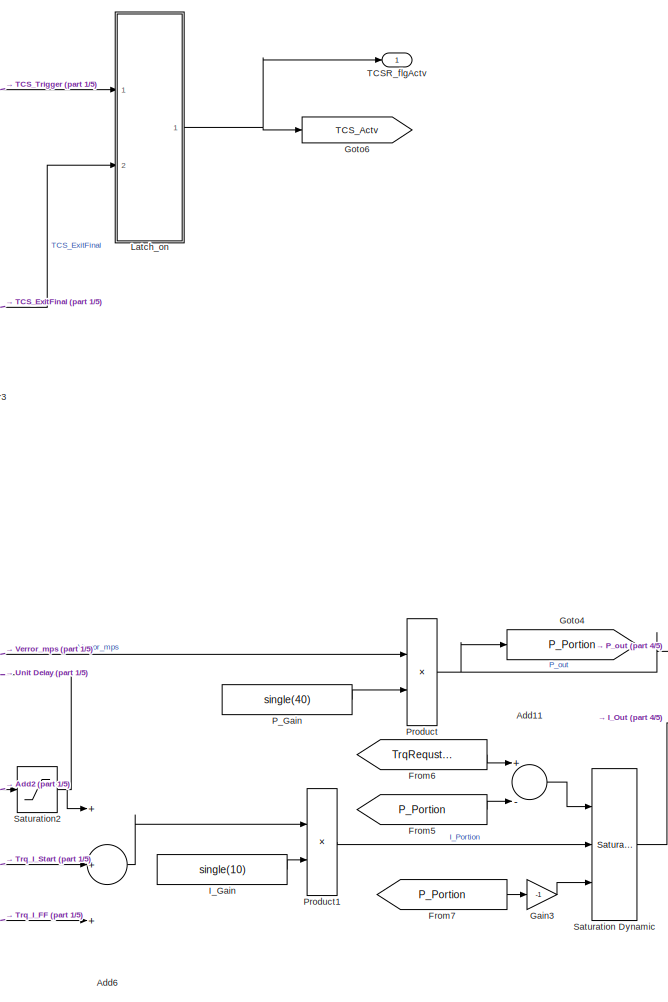
[diagram: TCS_PI+FF_Ctrl_R - part 2/5, center side, full height]
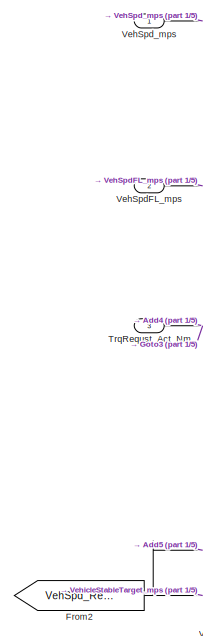
[diagram: TCS_PI+FF_Ctrl_R - part 3/5, middle left region]
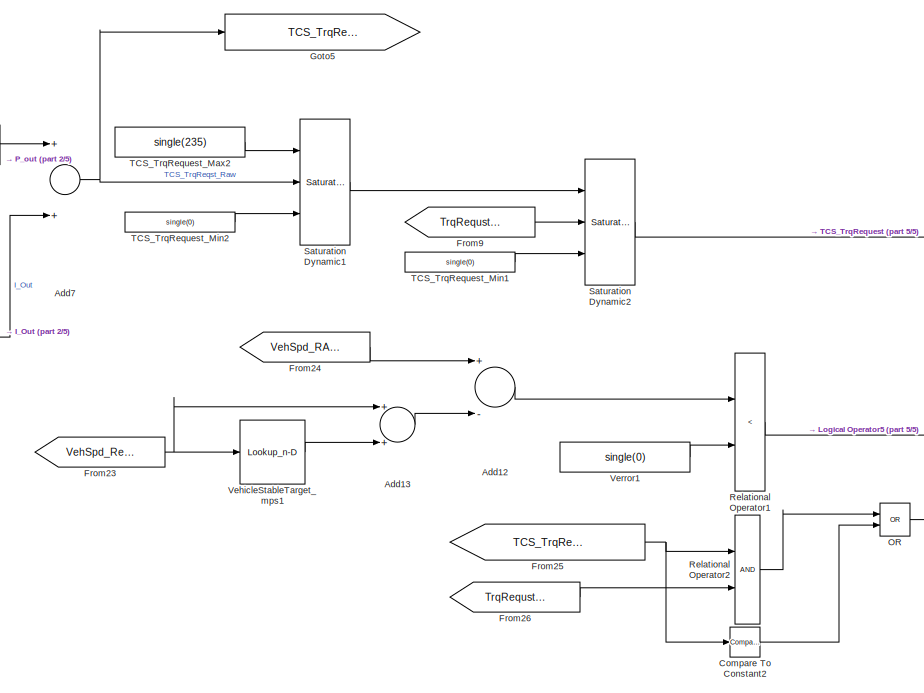
[diagram: TCS_PI+FF_Ctrl_R - part 4/5, bottom center region]
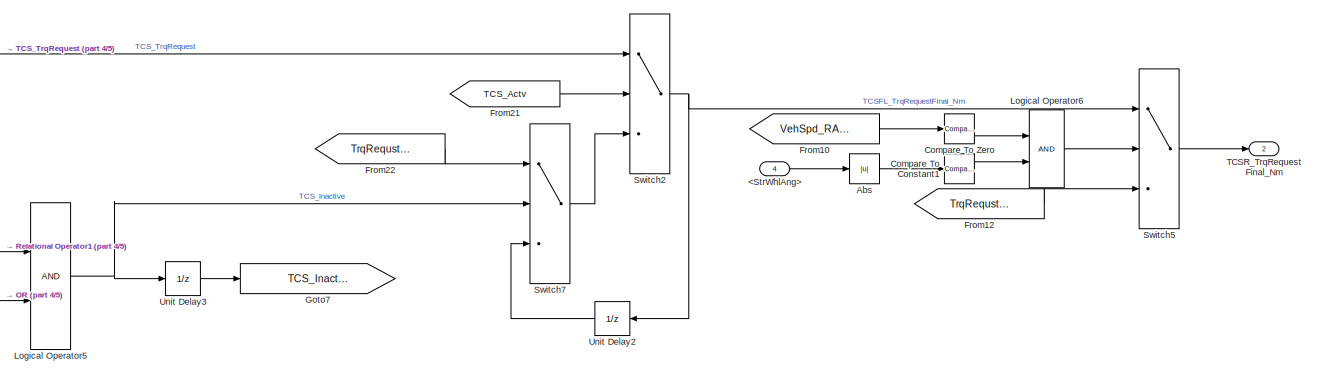
[diagram: TCS_PI+FF_Ctrl_R - part 5/5, bottom right region]
BLOCK [SubSystem] TCS_PI+FF_Ctrl_R
  Ports = [4, 2]
  RequestExecContextInheritance = off
BLOCK [Inport] TCS_PI+FF_Ctrl_R/<StrWhlAng>
  IconDisplay = Port number
  Port = 4
BLOCK [Abs] TCS_PI+FF_Ctrl_R/Abs
  SaturateOnIntegerOverflow = off
BLOCK [Sum] TCS_PI+FF_Ctrl_R/Add1
  InputSameDT = off
  Inputs = +-
  OutDataTypeStr = Inherit: Inherit via internal rule
  Ports = [2, 1]
  SaturateOnIntegerOverflow = off
BLOCK [Sum] TCS_PI+FF_Ctrl_R/Add10
  InputSameDT = off
  Inputs = +-
  OutDataTypeStr = Inherit: Inherit via internal rule
  Ports = [2, 1]
  SaturateOnIntegerOverflow = off
BLOCK [Sum] TCS_PI+FF_Ctrl_R/Add11
  InputSameDT = off
  Inputs = +-
  OutDataTypeStr = Inherit: Inherit via internal rule
  Ports = [2, 1]
  SaturateOnIntegerOverflow = off
BLOCK [Sum] TCS_PI+FF_Ctrl_R/Add12
  InputSameDT = off
  Inputs = +-
  OutDataTypeStr = Inherit: Inherit via internal rule
  Ports = [2, 1]
  SaturateOnIntegerOverflow = off
BLOCK [Sum] TCS_PI+FF_Ctrl_R/Add13
  InputSameDT = off
  OutDataTypeStr = Inherit: Inherit via internal rule
  Ports = [2, 1]
  SaturateOnIntegerOverflow = off
BLOCK [Sum] TCS_PI+FF_Ctrl_R/Add2
  InputSameDT = off
  OutDataTypeStr = Inherit: Inherit via internal rule
  Ports = [2, 1]
  SaturateOnIntegerOverflow = off
BLOCK [Sum] TCS_PI+FF_Ctrl_R/Add4
  InputSameDT = off
  Inputs = +-
  OutDataTypeStr = Inherit: Inherit via internal rule
  Ports = [2, 1]
  SaturateOnIntegerOverflow = off
BLOCK [Sum] TCS_PI+FF_Ctrl_R/Add5
  InputSameDT = off
  OutDataTypeStr = Inherit: Inherit via internal rule
  Ports = [2, 1]
  SaturateOnIntegerOverflow = off
BLOCK [Sum] TCS_PI+FF_Ctrl_R/Add6
  InputSameDT = off
  Inputs = +++
  OutDataTypeStr = Inherit: Inherit via internal rule
  Ports = [3, 1]
  SaturateOnIntegerOverflow = off
BLOCK [Sum] TCS_PI+FF_Ctrl_R/Add7
  InputSameDT = off
  OutDataTypeStr = Inherit: Inherit via internal rule
  Ports = [2, 1]
  SaturateOnIntegerOverflow = off
BLOCK [Sum] TCS_PI+FF_Ctrl_R/Add9
  InputSameDT = off
  OutDataTypeStr = Inherit: Inherit via internal rule
  Ports = [2, 1]
  SaturateOnIntegerOverflow = off
BLOCK [Constant] TCS_PI+FF_Ctrl_R/Cal_DeltaV_mps
  Value = single(0)
BLOCK [Constant] TCS_PI+FF_Ctrl_R/Cal_DeltaV_mps1
  Value = single(235)
BLOCK [Reference] TCS_PI+FF_Ctrl_R/Compare To Constant  REF=simulink/Logic and Bit
Operations/Compare
To Constant
  Ports = [1, 1]
  SourceBlock = simulink/Logic and Bit\nOperations/Compare\nTo Constant
  SourceProductBaseCode = SL
  SourceProductName = Simulink
  SourceType = Compare To Constant
BLOCK [Reference] TCS_PI+FF_Ctrl_R/Compare To Constant1  REF=simulink/Logic and Bit
Operations/Compare
To Constant
  Ports = [1, 1]
  SourceBlock = simulink/Logic and Bit\nOperations/Compare\nTo Constant
  SourceProductBaseCode = SL
  SourceProductName = Simulink
  SourceType = Compare To Constant
BLOCK [Reference] TCS_PI+FF_Ctrl_R/Compare To Constant2  REF=simulink/Logic and Bit
Operations/Compare
To Constant
  Ports = [1, 1]
  SourceBlock = simulink/Logic and Bit\nOperations/Compare\nTo Constant
  SourceProductBaseCode = SL
  SourceProductName = Simulink
  SourceType = Compare To Constant
BLOCK [Reference] TCS_PI+FF_Ctrl_R/Compare To Zero  REF=simulink/Logic and Bit
Operations/Compare
To Zero
  Ports = [1, 1]
  SourceBlock = simulink/Logic and Bit\nOperations/Compare\nTo Zero
  SourceProductBaseCode = SL
  SourceProductName = Simulink
  SourceType = Compare To Zero
BLOCK [Reference] TCS_PI+FF_Ctrl_R/Detect Rise Positive  REF=simulink/Logic and Bit
Operations/Detect Rise
Positive
  Ports = [1, 1]
  SourceBlock = simulink/Logic and Bit\nOperations/Detect Rise\nPositive
  SourceProductBaseCode = SL
  SourceProductName = Simulink
  SourceType = Detect Rise Positive
BLOCK [From] TCS_PI+FF_Ctrl_R/From
  GotoTag = TCS_Actv
BLOCK [From] TCS_PI+FF_Ctrl_R/From1
  GotoTag = P_Portion
BLOCK [From] TCS_PI+FF_Ctrl_R/From10
  GotoTag = VehSpd_RA_mps
BLOCK [From] TCS_PI+FF_Ctrl_R/From12
  GotoTag = TrqRequst_Act_Nm
BLOCK [From] TCS_PI+FF_Ctrl_R/From18
  GotoTag = Verr_mps
BLOCK [From] TCS_PI+FF_Ctrl_R/From19
  GotoTag = TCS_TrqReqstRaw_Nm
BLOCK [From] TCS_PI+FF_Ctrl_R/From2
  GotoTag = VehSpd_Ref_mps
BLOCK [From] TCS_PI+FF_Ctrl_R/From20
  GotoTag = TCS_Actv
BLOCK [From] TCS_PI+FF_Ctrl_R/From21
  GotoTag = TCS_Actv
BLOCK [From] TCS_PI+FF_Ctrl_R/From22
  GotoTag = TrqRequst_Act_Nm
BLOCK [From] TCS_PI+FF_Ctrl_R/From23
  GotoTag = VehSpd_Ref_mps
BLOCK [From] TCS_PI+FF_Ctrl_R/From24
  GotoTag = VehSpd_RA_mps
BLOCK [From] TCS_PI+FF_Ctrl_R/From25
  GotoTag = TCS_TrqReqstRaw_Nm
BLOCK [From] TCS_PI+FF_Ctrl_R/From26
  GotoTag = TrqRequst_Act_Nm
BLOCK [From] TCS_PI+FF_Ctrl_R/From27
  GotoTag = TCS_Inactive
BLOCK [From] TCS_PI+FF_Ctrl_R/From3
  GotoTag = VehSpd_RA_mps
BLOCK [From] TCS_PI+FF_Ctrl_R/From4
  GotoTag = TCS_Actv
BLOCK [From] TCS_PI+FF_Ctrl_R/From5
  GotoTag = P_Portion
BLOCK [From] TCS_PI+FF_Ctrl_R/From6
  GotoTag = TrqRequst_Act_Nm
BLOCK [From] TCS_PI+FF_Ctrl_R/From7
  GotoTag = P_Portion
BLOCK [From] TCS_PI+FF_Ctrl_R/From8
  GotoTag = Verr_Zore
BLOCK [From] TCS_PI+FF_Ctrl_R/From9
  GotoTag = TrqRequst_Act_Nm
BLOCK [Gain] TCS_PI+FF_Ctrl_R/Gain3
  Gain = -1
  OutDataTypeStr = Inherit: Inherit via internal rule
  ParamDataTypeStr = Inherit: Inherit via internal rule
  SaturateOnIntegerOverflow = off
BLOCK [Goto] TCS_PI+FF_Ctrl_R/Goto
  GotoTag = VehSpd_Ref_mps
BLOCK [Goto] TCS_PI+FF_Ctrl_R/Goto1
  GotoTag = Verr_mps
BLOCK [Goto] TCS_PI+FF_Ctrl_R/Goto2
  GotoTag = VehSpd_RA_mps
BLOCK [Goto] TCS_PI+FF_Ctrl_R/Goto3
  GotoTag = TrqRequst_Act_Nm
BLOCK [Goto] TCS_PI+FF_Ctrl_R/Goto4
  GotoTag = P_Portion
BLOCK [Goto] TCS_PI+FF_Ctrl_R/Goto5
  GotoTag = TCS_TrqReqstRaw_Nm
BLOCK [Goto] TCS_PI+FF_Ctrl_R/Goto6
  GotoTag = TCS_Actv
BLOCK [Goto] TCS_PI+FF_Ctrl_R/Goto7
  GotoTag = TCS_Inactive
BLOCK [Goto] TCS_PI+FF_Ctrl_R/Goto8
  GotoTag = Verr_Zore
BLOCK [Constant] TCS_PI+FF_Ctrl_R/I_Gain
  Value = single(10)
BLOCK [Constant] TCS_PI+FF_Ctrl_R/Integr_StartPoint
  Value = single(0)
BLOCK [SubSystem] TCS_PI+FF_Ctrl_R/Latch_on
  Ports = [2, 1]
  RequestExecContextInheritance = off
BLOCK [Logic] TCS_PI+FF_Ctrl_R/Latch_on/Logical Operator4
  AllPortsSameDT = off
  Operator = NOR
  OutDataTypeStr = boolean
  Ports = [2, 1]
BLOCK [Logic] TCS_PI+FF_Ctrl_R/Latch_on/Logical Operator5
  AllPortsSameDT = off
  Operator = NOR
  OutDataTypeStr = boolean
  Ports = [2, 1]
BLOCK [Inport] TCS_PI+FF_Ctrl_R/Latch_on/Reset
  IconDisplay = Port number
  Port = 2
BLOCK [Inport] TCS_PI+FF_Ctrl_R/Latch_on/Set
  IconDisplay = Port number
BLOCK [UnitDelay] TCS_PI+FF_Ctrl_R/Latch_on/Unit Delay1
  HasFrameUpgradeWarning = on
  SampleTime = -1
BLOCK [Outport] TCS_PI+FF_Ctrl_R/Latch_on/flg_TCSActv
  IconDisplay = Port number
BLOCK [Logic] TCS_PI+FF_Ctrl_R/Logical Operator1
  AllPortsSameDT = off
  OutDataTypeStr = boolean
  Ports = [2, 1]
BLOCK [Logic] TCS_PI+FF_Ctrl_R/Logical Operator2
  AllPortsSameDT = off
  Operator = NOT
  OutDataTypeStr = boolean
  Ports = [1, 1]
BLOCK [Logic] TCS_PI+FF_Ctrl_R/Logical Operator3
  AllPortsSameDT = off
  Operator = OR
  OutDataTypeStr = boolean
  Ports = [2, 1]
BLOCK [Logic] TCS_PI+FF_Ctrl_R/Logical Operator4
  AllPortsSameDT = off
  OutDataTypeStr = boolean
  Ports = [2, 1]
BLOCK [Logic] TCS_PI+FF_Ctrl_R/Logical Operator5
  AllPortsSameDT = off
  OutDataTypeStr = boolean
  Ports = [2, 1]
BLOCK [Logic] TCS_PI+FF_Ctrl_R/Logical Operator6
  AllPortsSameDT = off
  OutDataTypeStr = boolean
  Ports = [2, 1]
BLOCK [Logic] TCS_PI+FF_Ctrl_R/OR
  AllPortsSameDT = off
  Operator = OR
  OutDataTypeStr = boolean
  Ports = [2, 1]
BLOCK [Constant] TCS_PI+FF_Ctrl_R/P_Gain
  Value = single(40)
BLOCK [Product] TCS_PI+FF_Ctrl_R/Product
  InputSameDT = off
  OutDataTypeStr = Inherit: Inherit via internal rule
  Ports = [2, 1]
  RndMeth = Floor
  SaturateOnIntegerOverflow = off
BLOCK [Product] TCS_PI+FF_Ctrl_R/Product1
  InputSameDT = off
  OutDataTypeStr = Inherit: Inherit via internal rule
  Ports = [2, 1]
  RndMeth = Floor
  SaturateOnIntegerOverflow = off
BLOCK [Product] TCS_PI+FF_Ctrl_R/Product2
  InputSameDT = off
  OutDataTypeStr = Inherit: Inherit via internal rule
  Ports = [2, 1]
  RndMeth = Floor
  SaturateOnIntegerOverflow = off
BLOCK [RelationalOperator] TCS_PI+FF_Ctrl_R/Relational Operator
  InputSameDT = off
  Operator = <
  OutDataTypeStr = boolean
  Ports = [2, 1]
  RndMeth = Simplest
BLOCK [RelationalOperator] TCS_PI+FF_Ctrl_R/Relational Operator1
  InputSameDT = off
  Operator = <
  OutDataTypeStr = boolean
  Ports = [2, 1]
  RndMeth = Simplest
BLOCK [RelationalOperator] TCS_PI+FF_Ctrl_R/Relational Operator2
  InputSameDT = off
  OutDataTypeStr = boolean
  Ports = [2, 1]
  RndMeth = Simplest
BLOCK [RelationalOperator] TCS_PI+FF_Ctrl_R/Relational Operator7
  InputSameDT = off
  Operator = <
  OutDataTypeStr = boolean
  Ports = [2, 1]
  RndMeth = Simplest
BLOCK [RelationalOperator] TCS_PI+FF_Ctrl_R/Relational Operator8
  InputSameDT = off
  Operator = >
  OutDataTypeStr = boolean
  Ports = [2, 1]
  RndMeth = Simplest
BLOCK [Constant] TCS_PI+FF_Ctrl_R/ResetDelay
  Value = single(0.1)
BLOCK [SubSystem] TCS_PI+FF_Ctrl_R/RisingTimer
  Ports = [2, 1]
  RequestExecContextInheritance = off
BLOCK [Sum] TCS_PI+FF_Ctrl_R/RisingTimer/Add10
  InputSameDT = off
  OutDataTypeStr = Inherit: Inherit via internal rule
  Ports = [2, 1]
  SaturateOnIntegerOverflow = off
BLOCK [MinMax] TCS_PI+FF_Ctrl_R/RisingTimer/Min
  InputSameDT = off
  Inputs = 2
  Ports = [2, 1]
  SaturateOnIntegerOverflow = off
BLOCK [RelationalOperator] TCS_PI+FF_Ctrl_R/RisingTimer/Relational Operator9
  InputSameDT = off
  OutDataTypeStr = boolean
  Ports = [2, 1]
  RndMeth = Simplest
BLOCK [Constant] TCS_PI+FF_Ctrl_R/RisingTimer/Reset
  Value = single(0)
BLOCK [Inport] TCS_PI+FF_Ctrl_R/RisingTimer/Set
  IconDisplay = Port number
BLOCK [Constant] TCS_PI+FF_Ctrl_R/RisingTimer/Steptime
  Value = single(0.01)
BLOCK [Switch] TCS_PI+FF_Ctrl_R/RisingTimer/Switch6
  Criteria = u2 ~= 0
  InputSameDT = off
  SaturateOnIntegerOverflow = off
BLOCK [Outport] TCS_PI+FF_Ctrl_R/RisingTimer/TCSExit
  IconDisplay = Port number
BLOCK [Inport] TCS_PI+FF_Ctrl_R/RisingTimer/Timer
  IconDisplay = Port number
  Port = 2
BLOCK [UnitDelay] TCS_PI+FF_Ctrl_R/RisingTimer/Unit Delay1
  HasFrameUpgradeWarning = on
  SampleTime = -1
BLOCK [Saturate] TCS_PI+FF_Ctrl_R/Saturation
  InputPortMap = u0
  LowerLimit = 0
  Ports = [1, 1]
  UpperLimit = 40
BLOCK [Reference] TCS_PI+FF_Ctrl_R/Saturation Dynamic  REF=simulink/Discontinuities/Saturation
Dynamic
  Ports = [3, 1]
  SourceBlock = simulink/Discontinuities/Saturation\nDynamic
  SourceProductBaseCode = SL
  SourceProductName = Simulink
  SourceType = Saturation Dynamic
BLOCK [Reference] TCS_PI+FF_Ctrl_R/Saturation Dynamic1  REF=simulink/Discontinuities/Saturation
Dynamic
  Ports = [3, 1]
  SourceBlock = simulink/Discontinuities/Saturation\nDynamic
  SourceProductBaseCode = SL
  SourceProductName = Simulink
  SourceType = Saturation Dynamic
BLOCK [Reference] TCS_PI+FF_Ctrl_R/Saturation Dynamic2  REF=simulink/Discontinuities/Saturation
Dynamic
  Ports = [3, 1]
  SourceBlock = simulink/Discontinuities/Saturation\nDynamic
  SourceProductBaseCode = SL
  SourceProductName = Simulink
  SourceType = Saturation Dynamic
BLOCK [Saturate] TCS_PI+FF_Ctrl_R/Saturation1
  InputPortMap = u0
  LowerLimit = 0
  Ports = [1, 1]
  UpperLimit = 50
BLOCK [Saturate] TCS_PI+FF_Ctrl_R/Saturation2
  InputPortMap = u0
  LowerLimit = -100
  Ports = [1, 1]
  UpperLimit = 400
BLOCK [Switch] TCS_PI+FF_Ctrl_R/Switch
  Criteria = u2 ~= 0
  InputSameDT = off
  SaturateOnIntegerOverflow = off
BLOCK [Switch] TCS_PI+FF_Ctrl_R/Switch1
  Criteria = u2 ~= 0
  InputSameDT = off
  SaturateOnIntegerOverflow = off
BLOCK [Switch] TCS_PI+FF_Ctrl_R/Switch2
  Criteria = u2 ~= 0
  InputSameDT = off
  SaturateOnIntegerOverflow = off
BLOCK [Switch] TCS_PI+FF_Ctrl_R/Switch3
  Criteria = u2 ~= 0
  InputSameDT = off
  SaturateOnIntegerOverflow = off
BLOCK [Switch] TCS_PI+FF_Ctrl_R/Switch5
  Criteria = u2 ~= 0
  InputSameDT = off
  SaturateOnIntegerOverflow = off
BLOCK [Switch] TCS_PI+FF_Ctrl_R/Switch6
  Criteria = u2 ~= 0
  InputSameDT = off
  SaturateOnIntegerOverflow = off
BLOCK [Switch] TCS_PI+FF_Ctrl_R/Switch7
  Criteria = u2 ~= 0
  InputSameDT = off
  SaturateOnIntegerOverflow = off
BLOCK [Outport] TCS_PI+FF_Ctrl_R/TCSR_TrqRequestFinal_Nm
  IconDisplay = Port number
  Port = 2
BLOCK [Outport] TCS_PI+FF_Ctrl_R/TCSR_flgActv
  IconDisplay = Port number
BLOCK [Constant] TCS_PI+FF_Ctrl_R/TCS_TrqRequest_Max2
  Value = single(235)
BLOCK [Constant] TCS_PI+FF_Ctrl_R/TCS_TrqRequest_Min1
  Value = single(0)
BLOCK [Constant] TCS_PI+FF_Ctrl_R/TCS_TrqRequest_Min2
  Value = single(0)
BLOCK [Inport] TCS_PI+FF_Ctrl_R/TrqRequst_Act_Nm
  IconDisplay = Port number
  Port = 3
BLOCK [Constant] TCS_PI+FF_Ctrl_R/Trq_IReset
  Value = single(0)
BLOCK [Constant] TCS_PI+FF_Ctrl_R/Trq_I_FF
  Value = single(20)
BLOCK [UnitDelay] TCS_PI+FF_Ctrl_R/Unit Delay
  HasFrameUpgradeWarning = on
  SampleTime = -1
BLOCK [UnitDelay] TCS_PI+FF_Ctrl_R/Unit Delay1
  HasFrameUpgradeWarning = on
  SampleTime = -1
BLOCK [UnitDelay] TCS_PI+FF_Ctrl_R/Unit Delay2
  HasFrameUpgradeWarning = on
  SampleTime = -1
BLOCK [UnitDelay] TCS_PI+FF_Ctrl_R/Unit Delay3
  HasFrameUpgradeWarning = on
  SampleTime = -1
BLOCK [UnitDelay] TCS_PI+FF_Ctrl_R/Unit Delay4
  HasFrameUpgradeWarning = on
  SampleTime = -1
BLOCK [UnitDelay] TCS_PI+FF_Ctrl_R/Unit Delay5
  HasFrameUpgradeWarning = on
  SampleTime = -1
BLOCK [Inport] TCS_PI+FF_Ctrl_R/VehSpdFL_mps
  IconDisplay = Port number
  Port = 2
BLOCK [Lookup_n-D] TCS_PI+FF_Ctrl_R/VehSpd_SlipTarget_mps
  BreakpointsForDimension1 = [0,3,25,30]
  ExtrapMethod = Clip
  InternalRulePriority = Speed
  NumberOfTableDimensions = 1
  Ports = [1, 1]
  RndMeth = Simplest
  Table = [0.3,0.3,2.5,2.5]
BLOCK [Inport] TCS_PI+FF_Ctrl_R/VehSpd_mps
  IconDisplay = Port number
BLOCK [Lookup_n-D] TCS_PI+FF_Ctrl_R/VehicleStableTarget_mps
  BreakpointsForDimension1 = [0,3,25,30]
  ExtrapMethod = Clip
  InternalRulePriority = Speed
  NumberOfTableDimensions = 1
  Ports = [1, 1]
  RndMeth = Simplest
  Table = [0.4,0.4,1.2,1.2]
BLOCK [Lookup_n-D] TCS_PI+FF_Ctrl_R/VehicleStableTarget_mps1
  BreakpointsForDimension1 = [0,3,25,30]
  ExtrapMethod = Clip
  InternalRulePriority = Speed
  NumberOfTableDimensions = 1
  Ports = [1, 1]
  RndMeth = Simplest
  Table = [0.4,0.4,1.2,1.2]
BLOCK [Constant] TCS_PI+FF_Ctrl_R/Verror
  Value = single(0)
BLOCK [Constant] TCS_PI+FF_Ctrl_R/Verror1
  Value = single(0)
BLOCK [Constant] TCS_PI+FF_Ctrl_R/Verror_Reset
  Value = single(0)
BLOCK [Constant] TCS_PI+FF_Ctrl_R/Verror_Reset1
  Value = single(0)
ANNOTATION TCS_PI+FF_Ctrl_FL: 特殊设置：V error = Vtarget-Vactual <= 0
ANNOTATION TCS_PI+FF_Ctrl_FR: 特殊设置：V error = Vtarget-Vactual <= 0
ANNOTATION TCS_PI+FF_Ctrl_R: 特殊设置：V error = Vtarget-Vactual <= 0
LINE Cast To Single1:1 -> TCS_PI+FF_Ctrl_FR:2
LINE Cast To Single2:1 -> TCS_PI+FF_Ctrl_FR:3
LINE Cast To Single3:1 -> TCS_PI+FF_Ctrl_FL:1
LINE Cast To Single4:1 -> TCS_PI+FF_Ctrl_FL:2
LINE Cast To Single5:1 -> TCS_PI+FF_Ctrl_FL:3
LINE Cast To Single6:1 -> TCS_PI+FF_Ctrl_R:4
LINE Cast To Single7:1 -> TCS_PI+FF_Ctrl_R:3
LINE Cast To Single8:1 -> TCS_PI+FF_Ctrl_R:2
LINE Cast To Single9:1 -> TCS_PI+FF_Ctrl_R:1
LINE Cast To Single:1 -> TCS_PI+FF_Ctrl_FR:1
LINE In Bus Element1:1 -> Cast To Single8:1
LINE In Bus Element2:1 -> Cast To Single7:1
LINE In Bus Element3:1 -> Cast To Single6:1
LINE In Bus Element5:1 -> Cast To Single1:1
LINE In Bus Element6:1 -> Cast To Single2:1
LINE In Bus Element8:1 -> Cast To Single4:1
LINE In Bus Element9:1 -> Cast To Single5:1
NET In Bus Element:1 -> Cast To Single3:1, Cast To Single9:1, Cast To Single:1
LINE TCS_PI+FF_Ctrl_FL/Add10:1 -> TCS_PI+FF_Ctrl_FL/Relational Operator:1
LINE TCS_PI+FF_Ctrl_FL/Add11:1 -> TCS_PI+FF_Ctrl_FL/Saturation Dynamic:1
LINE TCS_PI+FF_Ctrl_FL/Add12:1 -> TCS_PI+FF_Ctrl_FL/Relational Operator1:1
LINE TCS_PI+FF_Ctrl_FL/Add13:1 -> TCS_PI+FF_Ctrl_FL/Add12:2
NET TCS_PI+FF_Ctrl_FL/Add1:1 -> TCS_PI+FF_Ctrl_FL/Goto1:1, TCS_PI+FF_Ctrl_FL/Product2:1, TCS_PI+FF_Ctrl_FL/Switch6:1, TCS_PI+FF_Ctrl_FL/Unit Delay5:1
LINE TCS_PI+FF_Ctrl_FL/Add2:1 -> TCS_PI+FF_Ctrl_FL/Saturation2:1
LINE TCS_PI+FF_Ctrl_FL/Add4:1 -> TCS_PI+FF_Ctrl_FL/Switch:1
LINE TCS_PI+FF_Ctrl_FL/Add5:1 -> TCS_PI+FF_Ctrl_FL/Add10:2
LINE TCS_PI+FF_Ctrl_FL/Add6:1 -> TCS_PI+FF_Ctrl_FL/Product1:1
NET TCS_PI+FF_Ctrl_FL/Add7:1 -> TCS_PI+FF_Ctrl_FL/Goto5:1, TCS_PI+FF_Ctrl_FL/Saturation Dynamic1:2
LINE TCS_PI+FF_Ctrl_FL/Add9:1 -> TCS_PI+FF_Ctrl_FL/Add1:1
LINE TCS_PI+FF_Ctrl_FL/Cal_DeltaV_mps1:1 -> TCS_PI+FF_Ctrl_FL/Relational Operator8:2
LINE TCS_PI+FF_Ctrl_FL/Cal_DeltaV_mps:1 -> TCS_PI+FF_Ctrl_FL/Relational Operator7:2
LINE TCS_PI+FF_Ctrl_FL/Compare To Constant2:1 -> TCS_PI+FF_Ctrl_FL/OR:2
LINE TCS_PI+FF_Ctrl_FL/Compare To Constant:1 -> TCS_PI+FF_Ctrl_FL/Goto8:1
LINE TCS_PI+FF_Ctrl_FL/Detect Rise Positive:1 -> TCS_PI+FF_Ctrl_FL/Switch:2
LINE TCS_PI+FF_Ctrl_FL/From18:1 -> TCS_PI+FF_Ctrl_FL/Relational Operator7:1
LINE TCS_PI+FF_Ctrl_FL/From19:1 -> TCS_PI+FF_Ctrl_FL/Unit Delay4:1
LINE TCS_PI+FF_Ctrl_FL/From1:1 -> TCS_PI+FF_Ctrl_FL/Unit Delay1:1
LINE TCS_PI+FF_Ctrl_FL/From20:1 -> TCS_PI+FF_Ctrl_FL/Switch6:2
LINE TCS_PI+FF_Ctrl_FL/From21:1 -> TCS_PI+FF_Ctrl_FL/Switch2:2
LINE TCS_PI+FF_Ctrl_FL/From22:1 -> TCS_PI+FF_Ctrl_FL/Switch7:1
NET TCS_PI+FF_Ctrl_FL/From23:1 -> TCS_PI+FF_Ctrl_FL/Add13:1, TCS_PI+FF_Ctrl_FL/VehicleStableTarget_mps1:1
LINE TCS_PI+FF_Ctrl_FL/From24:1 -> TCS_PI+FF_Ctrl_FL/Add12:1
NET TCS_PI+FF_Ctrl_FL/From25:1 -> TCS_PI+FF_Ctrl_FL/Compare To Constant2:1, TCS_PI+FF_Ctrl_FL/Relational Operator2:1
LINE TCS_PI+FF_Ctrl_FL/From26:1 -> TCS_PI+FF_Ctrl_FL/Relational Operator2:2
LINE TCS_PI+FF_Ctrl_FL/From27:1 -> TCS_PI+FF_Ctrl_FL/Logical Operator3:2
NET TCS_PI+FF_Ctrl_FL/From2:1 -> TCS_PI+FF_Ctrl_FL/Add5:1, TCS_PI+FF_Ctrl_FL/VehicleStableTarget_mps:1
LINE TCS_PI+FF_Ctrl_FL/From3:1 -> TCS_PI+FF_Ctrl_FL/Add10:1
LINE TCS_PI+FF_Ctrl_FL/From4:1 -> TCS_PI+FF_Ctrl_FL/Logical Operator4:2
LINE TCS_PI+FF_Ctrl_FL/From5:1 -> TCS_PI+FF_Ctrl_FL/Add11:2
LINE TCS_PI+FF_Ctrl_FL/From6:1 -> TCS_PI+FF_Ctrl_FL/Add11:1
LINE TCS_PI+FF_Ctrl_FL/From7:1 -> TCS_PI+FF_Ctrl_FL/Gain3:1
LINE TCS_PI+FF_Ctrl_FL/From8:1 -> TCS_PI+FF_Ctrl_FL/Switch3:2
LINE TCS_PI+FF_Ctrl_FL/From9:1 -> TCS_PI+FF_Ctrl_FL/Saturation Dynamic2:2
LINE TCS_PI+FF_Ctrl_FL/From:1 -> TCS_PI+FF_Ctrl_FL/Detect Rise Positive:1
LINE TCS_PI+FF_Ctrl_FL/Gain3:1 -> TCS_PI+FF_Ctrl_FL/Saturation Dynamic:3
LINE TCS_PI+FF_Ctrl_FL/I_Gain:1 -> TCS_PI+FF_Ctrl_FL/Product1:2
LINE TCS_PI+FF_Ctrl_FL/Integr_StartPoint:1 -> TCS_PI+FF_Ctrl_FL/Switch:3
LINE TCS_PI+FF_Ctrl_FL/Latch_on/Logical Operator4:1 -> TCS_PI+FF_Ctrl_FL/Latch_on/Logical Operator5:1
NET TCS_PI+FF_Ctrl_FL/Latch_on/Logical Operator5:1 -> TCS_PI+FF_Ctrl_FL/Latch_on/Unit Delay1:1, TCS_PI+FF_Ctrl_FL/Latch_on/flg_TCSActv:1
LINE TCS_PI+FF_Ctrl_FL/Latch_on/Reset:1 -> TCS_PI+FF_Ctrl_FL/Latch_on/Logical Operator5:2
LINE TCS_PI+FF_Ctrl_FL/Latch_on/Set:1 -> TCS_PI+FF_Ctrl_FL/Latch_on/Logical Operator4:2
LINE TCS_PI+FF_Ctrl_FL/Latch_on/Unit Delay1:1 -> TCS_PI+FF_Ctrl_FL/Latch_on/Logical Operator4:1
NET TCS_PI+FF_Ctrl_FL/Latch_on:1 -> TCS_PI+FF_Ctrl_FL/Goto6:1, TCS_PI+FF_Ctrl_FL/TCSFL_flgActv:1
LINE TCS_PI+FF_Ctrl_FL/Logical Operator1:1 -> TCS_PI+FF_Ctrl_FL/RisingTimer:1
LINE TCS_PI+FF_Ctrl_FL/Logical Operator2:1 -> TCS_PI+FF_Ctrl_FL/Logical Operator1:1
LINE TCS_PI+FF_Ctrl_FL/Logical Operator3:1 -> TCS_PI+FF_Ctrl_FL/Latch_on:2
LINE TCS_PI+FF_Ctrl_FL/Logical Operator4:1 -> TCS_PI+FF_Ctrl_FL/Switch1:2
NET TCS_PI+FF_Ctrl_FL/Logical Operator5:1 -> TCS_PI+FF_Ctrl_FL/Switch7:2, TCS_PI+FF_Ctrl_FL/Unit Delay3:1
LINE TCS_PI+FF_Ctrl_FL/OR:1 -> TCS_PI+FF_Ctrl_FL/Logical Operator5:2
LINE TCS_PI+FF_Ctrl_FL/P_Gain:1 -> TCS_PI+FF_Ctrl_FL/Product:2
LINE TCS_PI+FF_Ctrl_FL/Product1:1 -> TCS_PI+FF_Ctrl_FL/Saturation Dynamic:2
LINE TCS_PI+FF_Ctrl_FL/Product2:1 -> TCS_PI+FF_Ctrl_FL/Compare To Constant:1
NET TCS_PI+FF_Ctrl_FL/Product:1 -> TCS_PI+FF_Ctrl_FL/Add7:1, TCS_PI+FF_Ctrl_FL/Goto4:1
LINE TCS_PI+FF_Ctrl_FL/Relational Operator1:1 -> TCS_PI+FF_Ctrl_FL/Logical Operator5:1
LINE TCS_PI+FF_Ctrl_FL/Relational Operator2:1 -> TCS_PI+FF_Ctrl_FL/OR:1
NET TCS_PI+FF_Ctrl_FL/Relational Operator7:1 -> TCS_PI+FF_Ctrl_FL/Latch_on:1, TCS_PI+FF_Ctrl_FL/Logical Operator2:1
LINE TCS_PI+FF_Ctrl_FL/Relational Operator8:1 -> TCS_PI+FF_Ctrl_FL/Logical Operator1:2
LINE TCS_PI+FF_Ctrl_FL/Relational Operator:1 -> TCS_PI+FF_Ctrl_FL/Logical Operator4:1
LINE TCS_PI+FF_Ctrl_FL/ResetDelay:1 -> TCS_PI+FF_Ctrl_FL/RisingTimer:2
LINE TCS_PI+FF_Ctrl_FL/RisingTimer/Add10:1 -> TCS_PI+FF_Ctrl_FL/RisingTimer/Switch6:1
NET TCS_PI+FF_Ctrl_FL/RisingTimer/Min:1 -> TCS_PI+FF_Ctrl_FL/RisingTimer/Relational Operator9:1, TCS_PI+FF_Ctrl_FL/RisingTimer/Unit Delay1:1
LINE TCS_PI+FF_Ctrl_FL/RisingTimer/Relational Operator9:1 -> TCS_PI+FF_Ctrl_FL/RisingTimer/TCSExit:1
LINE TCS_PI+FF_Ctrl_FL/RisingTimer/Reset:1 -> TCS_PI+FF_Ctrl_FL/RisingTimer/Switch6:3
LINE TCS_PI+FF_Ctrl_FL/RisingTimer/Set:1 -> TCS_PI+FF_Ctrl_FL/RisingTimer/Switch6:2
LINE TCS_PI+FF_Ctrl_FL/RisingTimer/Steptime:1 -> TCS_PI+FF_Ctrl_FL/RisingTimer/Add10:2
LINE TCS_PI+FF_Ctrl_FL/RisingTimer/Switch6:1 -> TCS_PI+FF_Ctrl_FL/RisingTimer/Min:1
NET TCS_PI+FF_Ctrl_FL/RisingTimer/Timer:1 -> TCS_PI+FF_Ctrl_FL/RisingTimer/Min:2, TCS_PI+FF_Ctrl_FL/RisingTimer/Relational Operator9:2
LINE TCS_PI+FF_Ctrl_FL/RisingTimer/Unit Delay1:1 -> TCS_PI+FF_Ctrl_FL/RisingTimer/Add10:1
LINE TCS_PI+FF_Ctrl_FL/RisingTimer:1 -> TCS_PI+FF_Ctrl_FL/Logical Operator3:1
LINE TCS_PI+FF_Ctrl_FL/Saturation Dynamic1:1 -> TCS_PI+FF_Ctrl_FL/Saturation Dynamic2:1
LINE TCS_PI+FF_Ctrl_FL/Saturation Dynamic2:1 -> TCS_PI+FF_Ctrl_FL/Switch2:1
LINE TCS_PI+FF_Ctrl_FL/Saturation Dynamic:1 -> TCS_PI+FF_Ctrl_FL/Add7:2
NET TCS_PI+FF_Ctrl_FL/Saturation1:1 -> TCS_PI+FF_Ctrl_FL/Add1:2, TCS_PI+FF_Ctrl_FL/Goto2:1
NET TCS_PI+FF_Ctrl_FL/Saturation2:1 -> TCS_PI+FF_Ctrl_FL/Add6:1, TCS_PI+FF_Ctrl_FL/Unit Delay:1
NET TCS_PI+FF_Ctrl_FL/Saturation:1 -> TCS_PI+FF_Ctrl_FL/Add9:2, TCS_PI+FF_Ctrl_FL/Goto:1, TCS_PI+FF_Ctrl_FL/VehSpd_SlipTarget_mps:1
LINE TCS_PI+FF_Ctrl_FL/Switch1:1 -> TCS_PI+FF_Ctrl_FL/Add6:3
NET TCS_PI+FF_Ctrl_FL/Switch2:1 -> TCS_PI+FF_Ctrl_FL/TCSFL_TrqRequestFinal_Nm:1, TCS_PI+FF_Ctrl_FL/Unit Delay2:1
LINE TCS_PI+FF_Ctrl_FL/Switch3:1 -> TCS_PI+FF_Ctrl_FL/Add2:1
NET TCS_PI+FF_Ctrl_FL/Switch6:1 -> TCS_PI+FF_Ctrl_FL/Add2:2, TCS_PI+FF_Ctrl_FL/Product:1
LINE TCS_PI+FF_Ctrl_FL/Switch7:1 -> TCS_PI+FF_Ctrl_FL/Switch2:3
LINE TCS_PI+FF_Ctrl_FL/Switch:1 -> TCS_PI+FF_Ctrl_FL/Add6:2
LINE TCS_PI+FF_Ctrl_FL/TCS_TrqRequest_Max2:1 -> TCS_PI+FF_Ctrl_FL/Saturation Dynamic1:1
LINE TCS_PI+FF_Ctrl_FL/TCS_TrqRequest_Min1:1 -> TCS_PI+FF_Ctrl_FL/Saturation Dynamic2:3
LINE TCS_PI+FF_Ctrl_FL/TCS_TrqRequest_Min2:1 -> TCS_PI+FF_Ctrl_FL/Saturation Dynamic1:3
NET TCS_PI+FF_Ctrl_FL/TrqRequst_Act_Nm:1 -> TCS_PI+FF_Ctrl_FL/Add4:1, TCS_PI+FF_Ctrl_FL/Goto3:1
LINE TCS_PI+FF_Ctrl_FL/Trq_IReset:1 -> TCS_PI+FF_Ctrl_FL/Switch1:3
LINE TCS_PI+FF_Ctrl_FL/Trq_I_FF:1 -> TCS_PI+FF_Ctrl_FL/Switch1:1
LINE TCS_PI+FF_Ctrl_FL/Unit Delay1:1 -> TCS_PI+FF_Ctrl_FL/Add4:2
LINE TCS_PI+FF_Ctrl_FL/Unit Delay2:1 -> TCS_PI+FF_Ctrl_FL/Switch7:3
LINE TCS_PI+FF_Ctrl_FL/Unit Delay3:1 -> TCS_PI+FF_Ctrl_FL/Goto7:1
LINE TCS_PI+FF_Ctrl_FL/Unit Delay4:1 -> TCS_PI+FF_Ctrl_FL/Relational Operator8:1
LINE TCS_PI+FF_Ctrl_FL/Unit Delay5:1 -> TCS_PI+FF_Ctrl_FL/Product2:2
LINE TCS_PI+FF_Ctrl_FL/Unit Delay:1 -> TCS_PI+FF_Ctrl_FL/Switch3:3
LINE TCS_PI+FF_Ctrl_FL/VehSpdFL_mps:1 -> TCS_PI+FF_Ctrl_FL/Saturation1:1
LINE TCS_PI+FF_Ctrl_FL/VehSpd_SlipTarget_mps:1 -> TCS_PI+FF_Ctrl_FL/Add9:1
LINE TCS_PI+FF_Ctrl_FL/VehSpd_mps:1 -> TCS_PI+FF_Ctrl_FL/Saturation:1
LINE TCS_PI+FF_Ctrl_FL/VehicleStableTarget_mps1:1 -> TCS_PI+FF_Ctrl_FL/Add13:2
LINE TCS_PI+FF_Ctrl_FL/VehicleStableTarget_mps:1 -> TCS_PI+FF_Ctrl_FL/Add5:2
LINE TCS_PI+FF_Ctrl_FL/Verror1:1 -> TCS_PI+FF_Ctrl_FL/Relational Operator1:2
LINE TCS_PI+FF_Ctrl_FL/Verror:1 -> TCS_PI+FF_Ctrl_FL/Relational Operator:2
LINE TCS_PI+FF_Ctrl_FL/Verror_Reset1:1 -> TCS_PI+FF_Ctrl_FL/Switch3:1
LINE TCS_PI+FF_Ctrl_FL/Verror_Reset:1 -> TCS_PI+FF_Ctrl_FL/Switch6:3
LINE TCS_PI+FF_Ctrl_FL:1 -> Out Bus Element4:1
LINE TCS_PI+FF_Ctrl_FL:2 -> Out Bus Element5:1
LINE TCS_PI+FF_Ctrl_FR/Add10:1 -> TCS_PI+FF_Ctrl_FR/Relational Operator:1
LINE TCS_PI+FF_Ctrl_FR/Add11:1 -> TCS_PI+FF_Ctrl_FR/Saturation Dynamic:1
LINE TCS_PI+FF_Ctrl_FR/Add12:1 -> TCS_PI+FF_Ctrl_FR/Relational Operator1:1
LINE TCS_PI+FF_Ctrl_FR/Add13:1 -> TCS_PI+FF_Ctrl_FR/Add12:2
NET TCS_PI+FF_Ctrl_FR/Add1:1 -> TCS_PI+FF_Ctrl_FR/Goto1:1, TCS_PI+FF_Ctrl_FR/Product2:1, TCS_PI+FF_Ctrl_FR/Switch6:1, TCS_PI+FF_Ctrl_FR/Unit Delay5:1
LINE TCS_PI+FF_Ctrl_FR/Add2:1 -> TCS_PI+FF_Ctrl_FR/Saturation2:1
LINE TCS_PI+FF_Ctrl_FR/Add4:1 -> TCS_PI+FF_Ctrl_FR/Switch:1
LINE TCS_PI+FF_Ctrl_FR/Add5:1 -> TCS_PI+FF_Ctrl_FR/Add10:2
LINE TCS_PI+FF_Ctrl_FR/Add6:1 -> TCS_PI+FF_Ctrl_FR/Product1:1
NET TCS_PI+FF_Ctrl_FR/Add7:1 -> TCS_PI+FF_Ctrl_FR/Goto5:1, TCS_PI+FF_Ctrl_FR/Saturation Dynamic1:2
LINE TCS_PI+FF_Ctrl_FR/Add9:1 -> TCS_PI+FF_Ctrl_FR/Add1:1
LINE TCS_PI+FF_Ctrl_FR/Cal_DeltaV_mps1:1 -> TCS_PI+FF_Ctrl_FR/Relational Operator8:2
LINE TCS_PI+FF_Ctrl_FR/Cal_DeltaV_mps:1 -> TCS_PI+FF_Ctrl_FR/Relational Operator7:2
LINE TCS_PI+FF_Ctrl_FR/Compare To Constant2:1 -> TCS_PI+FF_Ctrl_FR/OR:2
LINE TCS_PI+FF_Ctrl_FR/Compare To Constant:1 -> TCS_PI+FF_Ctrl_FR/Goto8:1
LINE TCS_PI+FF_Ctrl_FR/Detect Rise Positive:1 -> TCS_PI+FF_Ctrl_FR/Switch:2
LINE TCS_PI+FF_Ctrl_FR/From18:1 -> TCS_PI+FF_Ctrl_FR/Relational Operator7:1
LINE TCS_PI+FF_Ctrl_FR/From19:1 -> TCS_PI+FF_Ctrl_FR/Unit Delay4:1
LINE TCS_PI+FF_Ctrl_FR/From1:1 -> TCS_PI+FF_Ctrl_FR/Unit Delay1:1
LINE TCS_PI+FF_Ctrl_FR/From20:1 -> TCS_PI+FF_Ctrl_FR/Switch6:2
LINE TCS_PI+FF_Ctrl_FR/From21:1 -> TCS_PI+FF_Ctrl_FR/Switch2:2
LINE TCS_PI+FF_Ctrl_FR/From22:1 -> TCS_PI+FF_Ctrl_FR/Switch7:1
NET TCS_PI+FF_Ctrl_FR/From23:1 -> TCS_PI+FF_Ctrl_FR/Add13:1, TCS_PI+FF_Ctrl_FR/VehicleStableTarget_mps1:1
LINE TCS_PI+FF_Ctrl_FR/From24:1 -> TCS_PI+FF_Ctrl_FR/Add12:1
NET TCS_PI+FF_Ctrl_FR/From25:1 -> TCS_PI+FF_Ctrl_FR/Compare To Constant2:1, TCS_PI+FF_Ctrl_FR/Relational Operator2:1
LINE TCS_PI+FF_Ctrl_FR/From26:1 -> TCS_PI+FF_Ctrl_FR/Relational Operator2:2
LINE TCS_PI+FF_Ctrl_FR/From27:1 -> TCS_PI+FF_Ctrl_FR/Logical Operator3:2
NET TCS_PI+FF_Ctrl_FR/From2:1 -> TCS_PI+FF_Ctrl_FR/Add5:1, TCS_PI+FF_Ctrl_FR/VehicleStableTarget_mps:1
LINE TCS_PI+FF_Ctrl_FR/From3:1 -> TCS_PI+FF_Ctrl_FR/Add10:1
LINE TCS_PI+FF_Ctrl_FR/From4:1 -> TCS_PI+FF_Ctrl_FR/Logical Operator4:2
LINE TCS_PI+FF_Ctrl_FR/From5:1 -> TCS_PI+FF_Ctrl_FR/Add11:2
LINE TCS_PI+FF_Ctrl_FR/From6:1 -> TCS_PI+FF_Ctrl_FR/Add11:1
LINE TCS_PI+FF_Ctrl_FR/From7:1 -> TCS_PI+FF_Ctrl_FR/Gain3:1
LINE TCS_PI+FF_Ctrl_FR/From8:1 -> TCS_PI+FF_Ctrl_FR/Switch3:2
LINE TCS_PI+FF_Ctrl_FR/From9:1 -> TCS_PI+FF_Ctrl_FR/Saturation Dynamic2:2
LINE TCS_PI+FF_Ctrl_FR/From:1 -> TCS_PI+FF_Ctrl_FR/Detect Rise Positive:1
LINE TCS_PI+FF_Ctrl_FR/Gain3:1 -> TCS_PI+FF_Ctrl_FR/Saturation Dynamic:3
LINE TCS_PI+FF_Ctrl_FR/I_Gain:1 -> TCS_PI+FF_Ctrl_FR/Product1:2
LINE TCS_PI+FF_Ctrl_FR/Integr_StartPoint:1 -> TCS_PI+FF_Ctrl_FR/Switch:3
LINE TCS_PI+FF_Ctrl_FR/Latch_on/Logical Operator4:1 -> TCS_PI+FF_Ctrl_FR/Latch_on/Logical Operator5:1
NET TCS_PI+FF_Ctrl_FR/Latch_on/Logical Operator5:1 -> TCS_PI+FF_Ctrl_FR/Latch_on/Unit Delay1:1, TCS_PI+FF_Ctrl_FR/Latch_on/flg_TCSActv:1
LINE TCS_PI+FF_Ctrl_FR/Latch_on/Reset:1 -> TCS_PI+FF_Ctrl_FR/Latch_on/Logical Operator5:2
LINE TCS_PI+FF_Ctrl_FR/Latch_on/Set:1 -> TCS_PI+FF_Ctrl_FR/Latch_on/Logical Operator4:2
LINE TCS_PI+FF_Ctrl_FR/Latch_on/Unit Delay1:1 -> TCS_PI+FF_Ctrl_FR/Latch_on/Logical Operator4:1
NET TCS_PI+FF_Ctrl_FR/Latch_on:1 -> TCS_PI+FF_Ctrl_FR/Goto6:1, TCS_PI+FF_Ctrl_FR/TCSFR_flgActv:1
LINE TCS_PI+FF_Ctrl_FR/Logical Operator1:1 -> TCS_PI+FF_Ctrl_FR/RisingTimer:1
LINE TCS_PI+FF_Ctrl_FR/Logical Operator2:1 -> TCS_PI+FF_Ctrl_FR/Logical Operator1:1
LINE TCS_PI+FF_Ctrl_FR/Logical Operator3:1 -> TCS_PI+FF_Ctrl_FR/Latch_on:2
LINE TCS_PI+FF_Ctrl_FR/Logical Operator4:1 -> TCS_PI+FF_Ctrl_FR/Switch1:2
NET TCS_PI+FF_Ctrl_FR/Logical Operator5:1 -> TCS_PI+FF_Ctrl_FR/Switch7:2, TCS_PI+FF_Ctrl_FR/Unit Delay3:1
LINE TCS_PI+FF_Ctrl_FR/OR:1 -> TCS_PI+FF_Ctrl_FR/Logical Operator5:2
LINE TCS_PI+FF_Ctrl_FR/P_Gain:1 -> TCS_PI+FF_Ctrl_FR/Product:2
LINE TCS_PI+FF_Ctrl_FR/Product1:1 -> TCS_PI+FF_Ctrl_FR/Saturation Dynamic:2
LINE TCS_PI+FF_Ctrl_FR/Product2:1 -> TCS_PI+FF_Ctrl_FR/Compare To Constant:1
NET TCS_PI+FF_Ctrl_FR/Product:1 -> TCS_PI+FF_Ctrl_FR/Add7:1, TCS_PI+FF_Ctrl_FR/Goto4:1
LINE TCS_PI+FF_Ctrl_FR/Relational Operator1:1 -> TCS_PI+FF_Ctrl_FR/Logical Operator5:1
LINE TCS_PI+FF_Ctrl_FR/Relational Operator2:1 -> TCS_PI+FF_Ctrl_FR/OR:1
NET TCS_PI+FF_Ctrl_FR/Relational Operator7:1 -> TCS_PI+FF_Ctrl_FR/Latch_on:1, TCS_PI+FF_Ctrl_FR/Logical Operator2:1
LINE TCS_PI+FF_Ctrl_FR/Relational Operator8:1 -> TCS_PI+FF_Ctrl_FR/Logical Operator1:2
LINE TCS_PI+FF_Ctrl_FR/Relational Operator:1 -> TCS_PI+FF_Ctrl_FR/Logical Operator4:1
LINE TCS_PI+FF_Ctrl_FR/ResetDelay:1 -> TCS_PI+FF_Ctrl_FR/RisingTimer:2
LINE TCS_PI+FF_Ctrl_FR/RisingTimer/Add10:1 -> TCS_PI+FF_Ctrl_FR/RisingTimer/Switch6:1
NET TCS_PI+FF_Ctrl_FR/RisingTimer/Min:1 -> TCS_PI+FF_Ctrl_FR/RisingTimer/Relational Operator9:1, TCS_PI+FF_Ctrl_FR/RisingTimer/Unit Delay1:1
LINE TCS_PI+FF_Ctrl_FR/RisingTimer/Relational Operator9:1 -> TCS_PI+FF_Ctrl_FR/RisingTimer/TCSExit:1
LINE TCS_PI+FF_Ctrl_FR/RisingTimer/Reset:1 -> TCS_PI+FF_Ctrl_FR/RisingTimer/Switch6:3
LINE TCS_PI+FF_Ctrl_FR/RisingTimer/Set:1 -> TCS_PI+FF_Ctrl_FR/RisingTimer/Switch6:2
LINE TCS_PI+FF_Ctrl_FR/RisingTimer/Steptime:1 -> TCS_PI+FF_Ctrl_FR/RisingTimer/Add10:2
LINE TCS_PI+FF_Ctrl_FR/RisingTimer/Switch6:1 -> TCS_PI+FF_Ctrl_FR/RisingTimer/Min:1
NET TCS_PI+FF_Ctrl_FR/RisingTimer/Timer:1 -> TCS_PI+FF_Ctrl_FR/RisingTimer/Min:2, TCS_PI+FF_Ctrl_FR/RisingTimer/Relational Operator9:2
LINE TCS_PI+FF_Ctrl_FR/RisingTimer/Unit Delay1:1 -> TCS_PI+FF_Ctrl_FR/RisingTimer/Add10:1
LINE TCS_PI+FF_Ctrl_FR/RisingTimer:1 -> TCS_PI+FF_Ctrl_FR/Logical Operator3:1
LINE TCS_PI+FF_Ctrl_FR/Saturation Dynamic1:1 -> TCS_PI+FF_Ctrl_FR/Saturation Dynamic2:1
LINE TCS_PI+FF_Ctrl_FR/Saturation Dynamic2:1 -> TCS_PI+FF_Ctrl_FR/Switch2:1
LINE TCS_PI+FF_Ctrl_FR/Saturation Dynamic:1 -> TCS_PI+FF_Ctrl_FR/Add7:2
NET TCS_PI+FF_Ctrl_FR/Saturation1:1 -> TCS_PI+FF_Ctrl_FR/Add1:2, TCS_PI+FF_Ctrl_FR/Goto2:1
NET TCS_PI+FF_Ctrl_FR/Saturation2:1 -> TCS_PI+FF_Ctrl_FR/Add6:1, TCS_PI+FF_Ctrl_FR/Unit Delay:1
NET TCS_PI+FF_Ctrl_FR/Saturation:1 -> TCS_PI+FF_Ctrl_FR/Add9:2, TCS_PI+FF_Ctrl_FR/Goto:1, TCS_PI+FF_Ctrl_FR/VehSpd_SlipTarget_mps:1
LINE TCS_PI+FF_Ctrl_FR/Switch1:1 -> TCS_PI+FF_Ctrl_FR/Add6:3
NET TCS_PI+FF_Ctrl_FR/Switch2:1 -> TCS_PI+FF_Ctrl_FR/TCSFR_TrqRequestFinal_Nm:1, TCS_PI+FF_Ctrl_FR/Unit Delay2:1
LINE TCS_PI+FF_Ctrl_FR/Switch3:1 -> TCS_PI+FF_Ctrl_FR/Add2:1
NET TCS_PI+FF_Ctrl_FR/Switch6:1 -> TCS_PI+FF_Ctrl_FR/Add2:2, TCS_PI+FF_Ctrl_FR/Product:1
LINE TCS_PI+FF_Ctrl_FR/Switch7:1 -> TCS_PI+FF_Ctrl_FR/Switch2:3
LINE TCS_PI+FF_Ctrl_FR/Switch:1 -> TCS_PI+FF_Ctrl_FR/Add6:2
LINE TCS_PI+FF_Ctrl_FR/TCS_TrqRequest_Max2:1 -> TCS_PI+FF_Ctrl_FR/Saturation Dynamic1:1
LINE TCS_PI+FF_Ctrl_FR/TCS_TrqRequest_Min1:1 -> TCS_PI+FF_Ctrl_FR/Saturation Dynamic2:3
LINE TCS_PI+FF_Ctrl_FR/TCS_TrqRequest_Min2:1 -> TCS_PI+FF_Ctrl_FR/Saturation Dynamic1:3
NET TCS_PI+FF_Ctrl_FR/TrqRequst_Act_Nm:1 -> TCS_PI+FF_Ctrl_FR/Add4:1, TCS_PI+FF_Ctrl_FR/Goto3:1
LINE TCS_PI+FF_Ctrl_FR/Trq_IReset:1 -> TCS_PI+FF_Ctrl_FR/Switch1:3
LINE TCS_PI+FF_Ctrl_FR/Trq_I_FF:1 -> TCS_PI+FF_Ctrl_FR/Switch1:1
LINE TCS_PI+FF_Ctrl_FR/Unit Delay1:1 -> TCS_PI+FF_Ctrl_FR/Add4:2
LINE TCS_PI+FF_Ctrl_FR/Unit Delay2:1 -> TCS_PI+FF_Ctrl_FR/Switch7:3
LINE TCS_PI+FF_Ctrl_FR/Unit Delay3:1 -> TCS_PI+FF_Ctrl_FR/Goto7:1
LINE TCS_PI+FF_Ctrl_FR/Unit Delay4:1 -> TCS_PI+FF_Ctrl_FR/Relational Operator8:1
LINE TCS_PI+FF_Ctrl_FR/Unit Delay5:1 -> TCS_PI+FF_Ctrl_FR/Product2:2
LINE TCS_PI+FF_Ctrl_FR/Unit Delay:1 -> TCS_PI+FF_Ctrl_FR/Switch3:3
LINE TCS_PI+FF_Ctrl_FR/VehSpdFR_mps:1 -> TCS_PI+FF_Ctrl_FR/Saturation1:1
LINE TCS_PI+FF_Ctrl_FR/VehSpd_SlipTarget_mps:1 -> TCS_PI+FF_Ctrl_FR/Add9:1
LINE TCS_PI+FF_Ctrl_FR/VehSpd_mps:1 -> TCS_PI+FF_Ctrl_FR/Saturation:1
LINE TCS_PI+FF_Ctrl_FR/VehicleStableTarget_mps1:1 -> TCS_PI+FF_Ctrl_FR/Add13:2
LINE TCS_PI+FF_Ctrl_FR/VehicleStableTarget_mps:1 -> TCS_PI+FF_Ctrl_FR/Add5:2
LINE TCS_PI+FF_Ctrl_FR/Verror1:1 -> TCS_PI+FF_Ctrl_FR/Relational Operator1:2
LINE TCS_PI+FF_Ctrl_FR/Verror:1 -> TCS_PI+FF_Ctrl_FR/Relational Operator:2
LINE TCS_PI+FF_Ctrl_FR/Verror_Reset1:1 -> TCS_PI+FF_Ctrl_FR/Switch3:1
LINE TCS_PI+FF_Ctrl_FR/Verror_Reset:1 -> TCS_PI+FF_Ctrl_FR/Switch6:3
LINE TCS_PI+FF_Ctrl_FR:1 -> Out Bus Element2:1
LINE TCS_PI+FF_Ctrl_FR:2 -> Out Bus Element3:1
LINE TCS_PI+FF_Ctrl_R/<StrWhlAng>:1 -> TCS_PI+FF_Ctrl_R/Abs:1
LINE TCS_PI+FF_Ctrl_R/Abs:1 -> TCS_PI+FF_Ctrl_R/Compare To Constant1:1
LINE TCS_PI+FF_Ctrl_R/Add10:1 -> TCS_PI+FF_Ctrl_R/Relational Operator:1
LINE TCS_PI+FF_Ctrl_R/Add11:1 -> TCS_PI+FF_Ctrl_R/Saturation Dynamic:1
LINE TCS_PI+FF_Ctrl_R/Add12:1 -> TCS_PI+FF_Ctrl_R/Relational Operator1:1
LINE TCS_PI+FF_Ctrl_R/Add13:1 -> TCS_PI+FF_Ctrl_R/Add12:2
NET TCS_PI+FF_Ctrl_R/Add1:1 -> TCS_PI+FF_Ctrl_R/Goto1:1, TCS_PI+FF_Ctrl_R/Product2:1, TCS_PI+FF_Ctrl_R/Switch6:1, TCS_PI+FF_Ctrl_R/Unit Delay5:1
LINE TCS_PI+FF_Ctrl_R/Add2:1 -> TCS_PI+FF_Ctrl_R/Saturation2:1
LINE TCS_PI+FF_Ctrl_R/Add4:1 -> TCS_PI+FF_Ctrl_R/Switch:1
LINE TCS_PI+FF_Ctrl_R/Add5:1 -> TCS_PI+FF_Ctrl_R/Add10:2
LINE TCS_PI+FF_Ctrl_R/Add6:1 -> TCS_PI+FF_Ctrl_R/Product1:1
NET TCS_PI+FF_Ctrl_R/Add7:1 -> TCS_PI+FF_Ctrl_R/Goto5:1, TCS_PI+FF_Ctrl_R/Saturation Dynamic1:2
LINE TCS_PI+FF_Ctrl_R/Add9:1 -> TCS_PI+FF_Ctrl_R/Add1:1
LINE TCS_PI+FF_Ctrl_R/Cal_DeltaV_mps1:1 -> TCS_PI+FF_Ctrl_R/Relational Operator8:2
LINE TCS_PI+FF_Ctrl_R/Cal_DeltaV_mps:1 -> TCS_PI+FF_Ctrl_R/Relational Operator7:2
LINE TCS_PI+FF_Ctrl_R/Compare To Constant1:1 -> TCS_PI+FF_Ctrl_R/Logical Operator6:2
LINE TCS_PI+FF_Ctrl_R/Compare To Constant2:1 -> TCS_PI+FF_Ctrl_R/OR:2
LINE TCS_PI+FF_Ctrl_R/Compare To Constant:1 -> TCS_PI+FF_Ctrl_R/Goto8:1
LINE TCS_PI+FF_Ctrl_R/Compare To Zero:1 -> TCS_PI+FF_Ctrl_R/Logical Operator6:1
LINE TCS_PI+FF_Ctrl_R/Detect Rise Positive:1 -> TCS_PI+FF_Ctrl_R/Switch:2
LINE TCS_PI+FF_Ctrl_R/From10:1 -> TCS_PI+FF_Ctrl_R/Compare To Zero:1
LINE TCS_PI+FF_Ctrl_R/From12:1 -> TCS_PI+FF_Ctrl_R/Switch5:3
LINE TCS_PI+FF_Ctrl_R/From18:1 -> TCS_PI+FF_Ctrl_R/Relational Operator7:1
LINE TCS_PI+FF_Ctrl_R/From19:1 -> TCS_PI+FF_Ctrl_R/Unit Delay4:1
LINE TCS_PI+FF_Ctrl_R/From1:1 -> TCS_PI+FF_Ctrl_R/Unit Delay1:1
LINE TCS_PI+FF_Ctrl_R/From20:1 -> TCS_PI+FF_Ctrl_R/Switch6:2
LINE TCS_PI+FF_Ctrl_R/From21:1 -> TCS_PI+FF_Ctrl_R/Switch2:2
LINE TCS_PI+FF_Ctrl_R/From22:1 -> TCS_PI+FF_Ctrl_R/Switch7:1
NET TCS_PI+FF_Ctrl_R/From23:1 -> TCS_PI+FF_Ctrl_R/Add13:1, TCS_PI+FF_Ctrl_R/VehicleStableTarget_mps1:1
LINE TCS_PI+FF_Ctrl_R/From24:1 -> TCS_PI+FF_Ctrl_R/Add12:1
NET TCS_PI+FF_Ctrl_R/From25:1 -> TCS_PI+FF_Ctrl_R/Compare To Constant2:1, TCS_PI+FF_Ctrl_R/Relational Operator2:1
LINE TCS_PI+FF_Ctrl_R/From26:1 -> TCS_PI+FF_Ctrl_R/Relational Operator2:2
LINE TCS_PI+FF_Ctrl_R/From27:1 -> TCS_PI+FF_Ctrl_R/Logical Operator3:2
NET TCS_PI+FF_Ctrl_R/From2:1 -> TCS_PI+FF_Ctrl_R/Add5:1, TCS_PI+FF_Ctrl_R/VehicleStableTarget_mps:1
LINE TCS_PI+FF_Ctrl_R/From3:1 -> TCS_PI+FF_Ctrl_R/Add10:1
LINE TCS_PI+FF_Ctrl_R/From4:1 -> TCS_PI+FF_Ctrl_R/Logical Operator4:2
LINE TCS_PI+FF_Ctrl_R/From5:1 -> TCS_PI+FF_Ctrl_R/Add11:2
LINE TCS_PI+FF_Ctrl_R/From6:1 -> TCS_PI+FF_Ctrl_R/Add11:1
LINE TCS_PI+FF_Ctrl_R/From7:1 -> TCS_PI+FF_Ctrl_R/Gain3:1
LINE TCS_PI+FF_Ctrl_R/From8:1 -> TCS_PI+FF_Ctrl_R/Switch3:2
LINE TCS_PI+FF_Ctrl_R/From9:1 -> TCS_PI+FF_Ctrl_R/Saturation Dynamic2:2
LINE TCS_PI+FF_Ctrl_R/From:1 -> TCS_PI+FF_Ctrl_R/Detect Rise Positive:1
LINE TCS_PI+FF_Ctrl_R/Gain3:1 -> TCS_PI+FF_Ctrl_R/Saturation Dynamic:3
LINE TCS_PI+FF_Ctrl_R/I_Gain:1 -> TCS_PI+FF_Ctrl_R/Product1:2
LINE TCS_PI+FF_Ctrl_R/Integr_StartPoint:1 -> TCS_PI+FF_Ctrl_R/Switch:3
LINE TCS_PI+FF_Ctrl_R/Latch_on/Logical Operator4:1 -> TCS_PI+FF_Ctrl_R/Latch_on/Logical Operator5:1
NET TCS_PI+FF_Ctrl_R/Latch_on/Logical Operator5:1 -> TCS_PI+FF_Ctrl_R/Latch_on/Unit Delay1:1, TCS_PI+FF_Ctrl_R/Latch_on/flg_TCSActv:1
LINE TCS_PI+FF_Ctrl_R/Latch_on/Reset:1 -> TCS_PI+FF_Ctrl_R/Latch_on/Logical Operator5:2
LINE TCS_PI+FF_Ctrl_R/Latch_on/Set:1 -> TCS_PI+FF_Ctrl_R/Latch_on/Logical Operator4:2
LINE TCS_PI+FF_Ctrl_R/Latch_on/Unit Delay1:1 -> TCS_PI+FF_Ctrl_R/Latch_on/Logical Operator4:1
NET TCS_PI+FF_Ctrl_R/Latch_on:1 -> TCS_PI+FF_Ctrl_R/Goto6:1, TCS_PI+FF_Ctrl_R/TCSR_flgActv:1
LINE TCS_PI+FF_Ctrl_R/Logical Operator1:1 -> TCS_PI+FF_Ctrl_R/RisingTimer:1
LINE TCS_PI+FF_Ctrl_R/Logical Operator2:1 -> TCS_PI+FF_Ctrl_R/Logical Operator1:1
LINE TCS_PI+FF_Ctrl_R/Logical Operator3:1 -> TCS_PI+FF_Ctrl_R/Latch_on:2
LINE TCS_PI+FF_Ctrl_R/Logical Operator4:1 -> TCS_PI+FF_Ctrl_R/Switch1:2
NET TCS_PI+FF_Ctrl_R/Logical Operator5:1 -> TCS_PI+FF_Ctrl_R/Switch7:2, TCS_PI+FF_Ctrl_R/Unit Delay3:1
LINE TCS_PI+FF_Ctrl_R/Logical Operator6:1 -> TCS_PI+FF_Ctrl_R/Switch5:2
LINE TCS_PI+FF_Ctrl_R/OR:1 -> TCS_PI+FF_Ctrl_R/Logical Operator5:2
LINE TCS_PI+FF_Ctrl_R/P_Gain:1 -> TCS_PI+FF_Ctrl_R/Product:2
LINE TCS_PI+FF_Ctrl_R/Product1:1 -> TCS_PI+FF_Ctrl_R/Saturation Dynamic:2
LINE TCS_PI+FF_Ctrl_R/Product2:1 -> TCS_PI+FF_Ctrl_R/Compare To Constant:1
NET TCS_PI+FF_Ctrl_R/Product:1 -> TCS_PI+FF_Ctrl_R/Add7:1, TCS_PI+FF_Ctrl_R/Goto4:1
LINE TCS_PI+FF_Ctrl_R/Relational Operator1:1 -> TCS_PI+FF_Ctrl_R/Logical Operator5:1
LINE TCS_PI+FF_Ctrl_R/Relational Operator2:1 -> TCS_PI+FF_Ctrl_R/OR:1
NET TCS_PI+FF_Ctrl_R/Relational Operator7:1 -> TCS_PI+FF_Ctrl_R/Latch_on:1, TCS_PI+FF_Ctrl_R/Logical Operator2:1
LINE TCS_PI+FF_Ctrl_R/Relational Operator8:1 -> TCS_PI+FF_Ctrl_R/Logical Operator1:2
LINE TCS_PI+FF_Ctrl_R/Relational Operator:1 -> TCS_PI+FF_Ctrl_R/Logical Operator4:1
LINE TCS_PI+FF_Ctrl_R/ResetDelay:1 -> TCS_PI+FF_Ctrl_R/RisingTimer:2
LINE TCS_PI+FF_Ctrl_R/RisingTimer/Add10:1 -> TCS_PI+FF_Ctrl_R/RisingTimer/Switch6:1
NET TCS_PI+FF_Ctrl_R/RisingTimer/Min:1 -> TCS_PI+FF_Ctrl_R/RisingTimer/Relational Operator9:1, TCS_PI+FF_Ctrl_R/RisingTimer/Unit Delay1:1
LINE TCS_PI+FF_Ctrl_R/RisingTimer/Relational Operator9:1 -> TCS_PI+FF_Ctrl_R/RisingTimer/TCSExit:1
LINE TCS_PI+FF_Ctrl_R/RisingTimer/Reset:1 -> TCS_PI+FF_Ctrl_R/RisingTimer/Switch6:3
LINE TCS_PI+FF_Ctrl_R/RisingTimer/Set:1 -> TCS_PI+FF_Ctrl_R/RisingTimer/Switch6:2
LINE TCS_PI+FF_Ctrl_R/RisingTimer/Steptime:1 -> TCS_PI+FF_Ctrl_R/RisingTimer/Add10:2
LINE TCS_PI+FF_Ctrl_R/RisingTimer/Switch6:1 -> TCS_PI+FF_Ctrl_R/RisingTimer/Min:1
NET TCS_PI+FF_Ctrl_R/RisingTimer/Timer:1 -> TCS_PI+FF_Ctrl_R/RisingTimer/Min:2, TCS_PI+FF_Ctrl_R/RisingTimer/Relational Operator9:2
LINE TCS_PI+FF_Ctrl_R/RisingTimer/Unit Delay1:1 -> TCS_PI+FF_Ctrl_R/RisingTimer/Add10:1
LINE TCS_PI+FF_Ctrl_R/RisingTimer:1 -> TCS_PI+FF_Ctrl_R/Logical Operator3:1
LINE TCS_PI+FF_Ctrl_R/Saturation Dynamic1:1 -> TCS_PI+FF_Ctrl_R/Saturation Dynamic2:1
LINE TCS_PI+FF_Ctrl_R/Saturation Dynamic2:1 -> TCS_PI+FF_Ctrl_R/Switch2:1
LINE TCS_PI+FF_Ctrl_R/Saturation Dynamic:1 -> TCS_PI+FF_Ctrl_R/Add7:2
NET TCS_PI+FF_Ctrl_R/Saturation1:1 -> TCS_PI+FF_Ctrl_R/Add1:2, TCS_PI+FF_Ctrl_R/Goto2:1
NET TCS_PI+FF_Ctrl_R/Saturation2:1 -> TCS_PI+FF_Ctrl_R/Add6:1, TCS_PI+FF_Ctrl_R/Unit Delay:1
NET TCS_PI+FF_Ctrl_R/Saturation:1 -> TCS_PI+FF_Ctrl_R/Add9:2, TCS_PI+FF_Ctrl_R/Goto:1, TCS_PI+FF_Ctrl_R/VehSpd_SlipTarget_mps:1
LINE TCS_PI+FF_Ctrl_R/Switch1:1 -> TCS_PI+FF_Ctrl_R/Add6:3
NET TCS_PI+FF_Ctrl_R/Switch2:1 -> TCS_PI+FF_Ctrl_R/Switch5:1, TCS_PI+FF_Ctrl_R/Unit Delay2:1
LINE TCS_PI+FF_Ctrl_R/Switch3:1 -> TCS_PI+FF_Ctrl_R/Add2:1
LINE TCS_PI+FF_Ctrl_R/Switch5:1 -> TCS_PI+FF_Ctrl_R/TCSR_TrqRequestFinal_Nm:1
NET TCS_PI+FF_Ctrl_R/Switch6:1 -> TCS_PI+FF_Ctrl_R/Add2:2, TCS_PI+FF_Ctrl_R/Product:1
LINE TCS_PI+FF_Ctrl_R/Switch7:1 -> TCS_PI+FF_Ctrl_R/Switch2:3
LINE TCS_PI+FF_Ctrl_R/Switch:1 -> TCS_PI+FF_Ctrl_R/Add6:2
LINE TCS_PI+FF_Ctrl_R/TCS_TrqRequest_Max2:1 -> TCS_PI+FF_Ctrl_R/Saturation Dynamic1:1
LINE TCS_PI+FF_Ctrl_R/TCS_TrqRequest_Min1:1 -> TCS_PI+FF_Ctrl_R/Saturation Dynamic2:3
LINE TCS_PI+FF_Ctrl_R/TCS_TrqRequest_Min2:1 -> TCS_PI+FF_Ctrl_R/Saturation Dynamic1:3
NET TCS_PI+FF_Ctrl_R/TrqRequst_Act_Nm:1 -> TCS_PI+FF_Ctrl_R/Add4:1, TCS_PI+FF_Ctrl_R/Goto3:1
LINE TCS_PI+FF_Ctrl_R/Trq_IReset:1 -> TCS_PI+FF_Ctrl_R/Switch1:3
LINE TCS_PI+FF_Ctrl_R/Trq_I_FF:1 -> TCS_PI+FF_Ctrl_R/Switch1:1
LINE TCS_PI+FF_Ctrl_R/Unit Delay1:1 -> TCS_PI+FF_Ctrl_R/Add4:2
LINE TCS_PI+FF_Ctrl_R/Unit Delay2:1 -> TCS_PI+FF_Ctrl_R/Switch7:3
LINE TCS_PI+FF_Ctrl_R/Unit Delay3:1 -> TCS_PI+FF_Ctrl_R/Goto7:1
LINE TCS_PI+FF_Ctrl_R/Unit Delay4:1 -> TCS_PI+FF_Ctrl_R/Relational Operator8:1
LINE TCS_PI+FF_Ctrl_R/Unit Delay5:1 -> TCS_PI+FF_Ctrl_R/Product2:2
LINE TCS_PI+FF_Ctrl_R/Unit Delay:1 -> TCS_PI+FF_Ctrl_R/Switch3:3
LINE TCS_PI+FF_Ctrl_R/VehSpdFL_mps:1 -> TCS_PI+FF_Ctrl_R/Saturation1:1
LINE TCS_PI+FF_Ctrl_R/VehSpd_SlipTarget_mps:1 -> TCS_PI+FF_Ctrl_R/Add9:1
LINE TCS_PI+FF_Ctrl_R/VehSpd_mps:1 -> TCS_PI+FF_Ctrl_R/Saturation:1
LINE TCS_PI+FF_Ctrl_R/VehicleStableTarget_mps1:1 -> TCS_PI+FF_Ctrl_R/Add13:2
LINE TCS_PI+FF_Ctrl_R/VehicleStableTarget_mps:1 -> TCS_PI+FF_Ctrl_R/Add5:2
LINE TCS_PI+FF_Ctrl_R/Verror1:1 -> TCS_PI+FF_Ctrl_R/Relational Operator1:2
LINE TCS_PI+FF_Ctrl_R/Verror:1 -> TCS_PI+FF_Ctrl_R/Relational Operator:2
LINE TCS_PI+FF_Ctrl_R/Verror_Reset1:1 -> TCS_PI+FF_Ctrl_R/Switch3:1
LINE TCS_PI+FF_Ctrl_R/Verror_Reset:1 -> TCS_PI+FF_Ctrl_R/Switch6:3
LINE TCS_PI+FF_Ctrl_R:1 -> Out Bus Element:1
LINE TCS_PI+FF_Ctrl_R:2 -> Out Bus Element1:1
note: NET lines group one-source signal fan-out (src -> all destinations, sorted); 1:1 wires keep LINE
